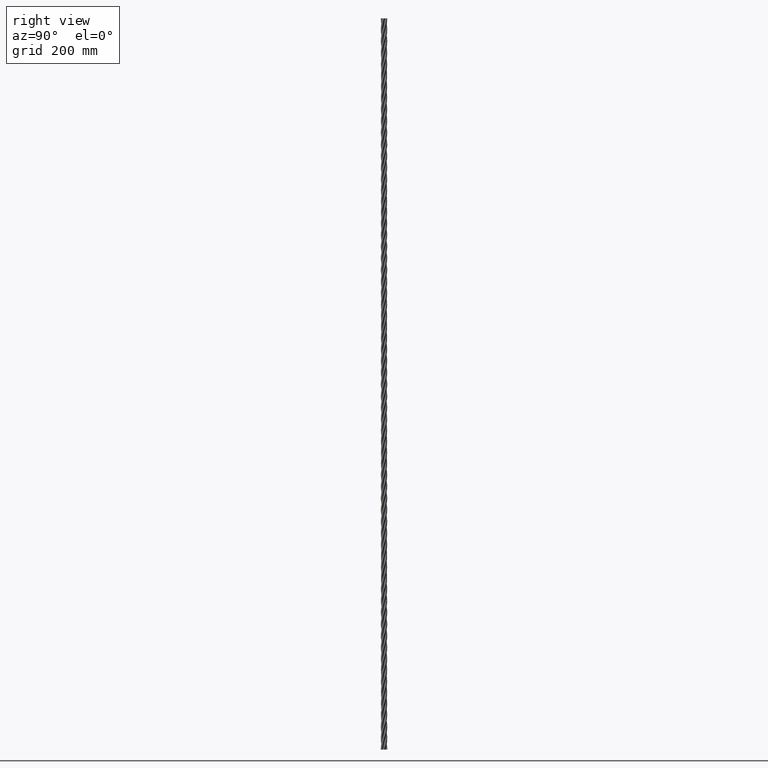
[diagram: clean part render]
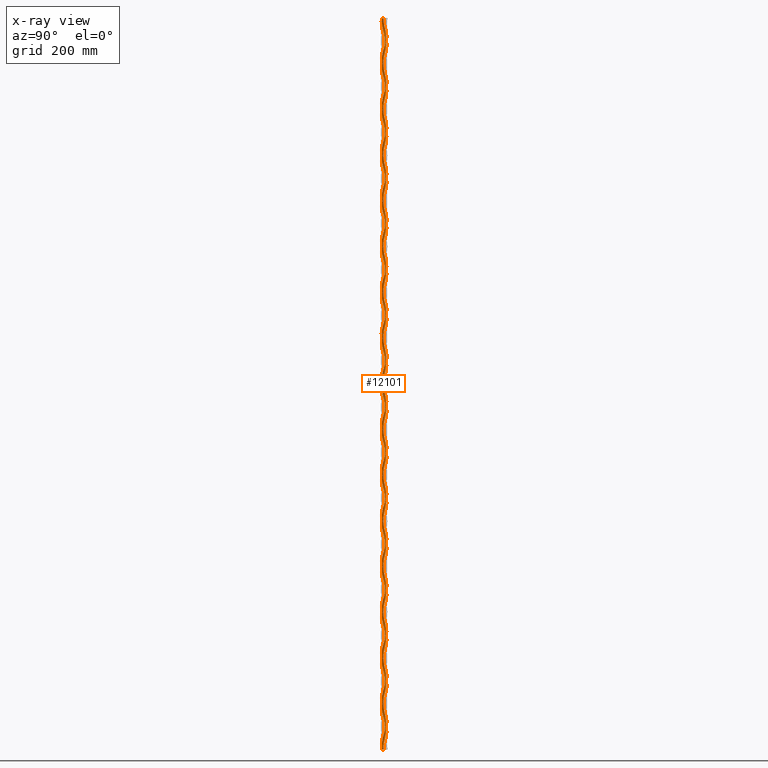
[diagram: x-ray — body ghosted, one internal face saturated and labeled with its STEP entity id]
A machine part, right view, then the same camera in x-ray: the body is ghosted and one INTERNAL B-rep face — a face not visible from any outside direction — is saturated and labeled: STEP entity #12101.
In plain terms, the highlighted face is a freeform B-spline surface patch.
Its self-contained STEP definition (entity closure, byte-faithful):
#4 = CARTESIAN_POINT ( 'NONE',  ( -10.68396539808967200, 6.270306255034134900, -1256.896551724137900 ) ) ;
#26 = CARTESIAN_POINT ( 'NONE',  ( 13.78632324108630200, 2.753231960091633700, -2467.239665108555100 ) ) ;
#31 = CARTESIAN_POINT ( 'NONE',  ( 0.8399118275822650100, -4.886555636634579300, -2001.724137927888000 ) ) ;
#50 = CARTESIAN_POINT ( 'NONE',  ( 12.38731303905346500, 0.1354027383847051200, -651.7241379191713100 ) ) ;
#75 = CARTESIAN_POINT ( 'NONE',  ( -10.38034677573888200, -9.472927676320654900, -1862.068965517304200 ) ) ;
#78 = CARTESIAN_POINT ( 'NONE',  ( -3.238967075141657000, 3.754060476707294500, -1396.551724137931200 ) ) ;
#81 = B_SPLINE_CURVE_WITH_KNOTS ( 'NONE', 3,
 ( #9139, #9156, #9197, #9097, #9094, #9063, #9048, #9037, #9021, #9010, #9002, #8999, #8985, #8971, #8968, #8957, #8953, #8930, #8920, #8917, #8908, #8905, #8892, #8881, #8877, #8868, #8847, #8844, #8835, #8831, #8817, #8802, #8798, #8785, #8782, #8765, #8755, #8729, #8715, #8702, #8679, #8676, #8663, #8643, #8630, #8627, #8619, #8605, #8584, #8582, #8571, #8558, #8549, #8546, #8535, #8519, #8505, #8501, #8489, #8475, #8470, #8459, #8447, #8435 ),
 .UNSPECIFIED., .F., .F.,
 ( 4, 1, 1, 1, 1, 1, 1, 1, 1, 1, 1, 1, 1, 1, 1, 1, 1, 1, 1, 1, 1, 1, 1, 1, 1, 1, 1, 1, 1, 1, 1, 1, 1, 1, 1, 1, 1, 1, 1, 1, 1, 1, 1, 1, 1, 1, 1, 1, 1, 1, 1, 1, 1, 1, 1, 1, 1, 1, 1, 1, 1, 4 ),
 ( 0.0000000000000000000, 0.008712557615085603200, 0.01742511523017125200, 0.02613767284525694800, 0.03768863433605058200, 0.05207799970255220400, 0.06930576894476177300, 0.08653353818697134800, 0.1037613074291808800, 0.1209890766713903600, 0.1382168459135998700, 0.1554446151558094600, 0.1726723843980190200, 0.1899001536402285800, 0.2071279228824380900, 0.2243556921246476500, 0.2415834613668571800, 0.2588112306090667400, 0.2760389998512762800, 0.2932667690934858700, 0.3104945383356954000, 0.3277223075779049900, 0.3449500768201145800, 0.3621778460623241200, 0.3794056153045335900, 0.3966333845467431300, 0.4138611537889526600, 0.4310889230311621400, 0.4483166922733716200, 0.4655444615155811000, 0.4827722307577906900, 0.5000000000000001100, 0.5172277692422097000, 0.5344555384844191800, 0.5516833077266287700, 0.5689110769688382500, 0.5861388462110476100, 0.6033666154532572000, 0.6205943846954666800, 0.6378221539376762700, 0.6550499231798857500, 0.6722776924220951200, 0.6895054616643047100, 0.7067332309065141900, 0.7239610001487237800, 0.7411887693909333700, 0.7584165386331429600, 0.7756443078753525500, 0.7928720771175620200, 0.8100998463597716100, 0.8273276156019809800, 0.8445553848441905700, 0.8617831540864000500, 0.8790109233286096400, 0.8962386925708191200, 0.9134664618130287100, 0.9306942310552383000, 0.9479220002974478900, 0.9623113656639493700, 0.9738623271547429700, 0.9825748847698285700, 1.000000000000000000 ),
 .UNSPECIFIED. ) ;
#92 = CARTESIAN_POINT ( 'NONE',  ( -8.288077817170631100, 3.468459770354806300, -72.39792966572048300 ) ) ;
#116 = CARTESIAN_POINT ( 'NONE',  ( 4.010670223131819000, 13.46857387806705700, -1256.896551724137900 ) ) ;
#120 = EDGE_CURVE ( 'NONE', #6864, #10692, #81, .T. ) ;
#121 = CARTESIAN_POINT ( 'NONE',  ( 4.710752539896845700, -1.546831690149686800, -791.3793103450570900 ) ) ;
#138 = CARTESIAN_POINT ( 'NONE',  ( -1.563060474366954300, -8.394834215106140400, -2557.746808158279700 ) ) ;
#165 = CARTESIAN_POINT ( 'NONE',  ( 3.507203749902906100, -13.60836070879695100, -651.7241379191713100 ) ) ;
#171 = CARTESIAN_POINT ( 'NONE',  ( -4.816176619355964300, -1.109373084543781000, -186.2006775543723300 ) ) ;
#189 = CARTESIAN_POINT ( 'NONE',  ( -2.608979572043753400, 8.811540120674495200, -1955.172413793958200 ) ) ;
#216 = CARTESIAN_POINT ( 'NONE',  ( 1.573833011885963800, 10.06987116082229700, -72.39792966572048300 ) ) ;
#220 = CARTESIAN_POINT ( 'NONE',  ( 5.011138398243011800, -3.949115703520899200, -2653.449779426162000 ) ) ;
#238 = CARTESIAN_POINT ( 'NONE',  ( 6.778346363051477800, -6.205161907909146500, -1350.000000000000200 ) ) ;
#264 = CARTESIAN_POINT ( 'NONE',  ( 2.608979659247371500, 8.811539888018318200, -2094.827586162481600 ) ) ;
#279 = CARTESIAN_POINT ( 'NONE',  ( -9.007169878001477100, 1.822334901749849600, -744.8275862060460200 ) ) ;
#306 = CARTESIAN_POINT ( 'NONE',  ( 2.307300632935208800, -8.895300866756356200, -1489.655172413793000 ) ) ;
#321 = CARTESIAN_POINT ( 'NONE',  ( 8.224484858621766000, 2.298981086134690000, -142.2531254628891900 ) ) ;
#349 = CARTESIAN_POINT ( 'NONE',  ( -6.563033777594979400, 6.432464640914272300, -884.4827586207068200 ) ) ;
#403 = CARTESIAN_POINT ( 'NONE',  ( 8.942095976281308400, -2.129229230221133800, -279.3098983236669100 ) ) ;
#427 = CARTESIAN_POINT ( 'NONE',  ( 4.963961030678928100, -7.036038969321072800, -2700.000000000000000 ) ) ;
#438 = CARTESIAN_POINT ( 'NONE',  ( -3.326671778804295400, -7.162158668403144200, -2692.274804044992400 ) ) ;
#482 = CARTESIAN_POINT ( 'NONE',  ( -5.921949632648734000, -10.88092066805892300, -2187.931033854381900 ) ) ;
#531 = CARTESIAN_POINT ( 'NONE',  ( -0.5354315260779890500, 12.37647648728769700, -1582.758620689656300 ) ) ;
#550 = CARTESIAN_POINT ( 'NONE',  ( 4.153416141140292300, -3.802075603746959400, 0.0003987658744335367400 ) ) ;
#575 = CARTESIAN_POINT ( 'NONE',  ( 6.839528536739782000, -10.32882890527498900, -977.5862068965541300 ) ) ;
#587 = CARTESIAN_POINT ( 'NONE',  ( 4.515802778071034100, 2.047054453062226600, -2327.586238637408800 ) ) ;
#610 = CARTESIAN_POINT ( 'NONE',  ( -11.18533972194749300, 5.324102520970840600, -372.4137610459102900 ) ) ;
#625 = CARTESIAN_POINT ( 'NONE',  ( -2.814094777522561800, -4.082247954218245500, -1722.413793103446800 ) ) ;
#651 = CARTESIAN_POINT ( 'NONE',  ( -4.976874516416558900, -5.731357245948379900, 0.0005981488127605285400 ) ) ;
#668 = CARTESIAN_POINT ( 'NONE',  ( 0.3066586257879850300, 4.948720871483639700, -1117.241379310345300 ) ) ;
#705 = CARTESIAN_POINT ( 'NONE',  ( 9.295334561997926000, 10.53964757104154700, -2281.034473922293700 ) ) ;
#718 = CARTESIAN_POINT ( 'NONE',  ( 2.288568578548599900, -4.398447652660268000, -512.0689661339615700 ) ) ;
#731 = CARTESIAN_POINT ( 'NONE',  ( -6.812175637669847500, 12.29152873416372800, -2281.034473922293700 ) ) ;
#742 = CARTESIAN_POINT ( 'NONE',  ( -2.530950515178751900, -13.82325024866903000, -1675.862068965517000 ) ) ;
#753 = CARTESIAN_POINT ( 'NONE',  ( 1.948878657068233300, -2.330638625610656200, -2.220446049250313100E-012 ) ) ;
#769 = CARTESIAN_POINT ( 'NONE',  ( 12.17405946905527800, -7.019988176024049200, -1675.862068965517000 ) ) ;
#778 = CARTESIAN_POINT ( 'NONE',  ( -4.957966872971957700, 13.14939247395832000, -1070.689655172414400 ) ) ;
#793 = CARTESIAN_POINT ( 'NONE',  ( -2.625150466349732700, 1.779658777048220800, -2420.690095698024400 ) ) ;
#809 = CARTESIAN_POINT ( 'NONE',  ( -14.05061220063962700, -0.2612560715388244100, -1070.689655172414400 ) ) ;
#824 = CARTESIAN_POINT ( 'NONE',  ( 11.02750857806483600, -8.711057253162088900, -465.5172390776845600 ) ) ;
#849 = CARTESIAN_POINT ( 'NONE',  ( 3.166025430327299900, -0.1716569110097168300, -1815.517241379293900 ) ) ;
#865 = CARTESIAN_POINT ( 'NONE',  ( 11.90468732607688400, 7.467722783787967200, -465.5172390776845600 ) ) ;
#879 = CARTESIAN_POINT ( 'NONE',  ( -4.963901561982697600, -7.036075089910720100, 0.0001993829361065454000 ) ) ;
#892 = CARTESIAN_POINT ( 'NONE',  ( -2.801329992455454700, -1.485171166482879900, -1210.344827586207700 ) ) ;
#905 = CARTESIAN_POINT ( 'NONE',  ( 4.964015002370826000, -7.035995057143929400, 0.0001993829361065454000 ) ) ;
#932 = CARTESIAN_POINT ( 'NONE',  ( 1.634653903502771000, 2.716816024306628400, -605.1724138373828100 ) ) ;
#946 = CARTESIAN_POINT ( 'NONE',  ( 3.445288619680474600, -11.89925995344619700, -2374.137809132387200 ) ) ;
#979 = CARTESIAN_POINT ( 'NONE',  ( -2.526357989137785000, -0.1636739821891457500, -38.79091710099528000 ) ) ;
#995 = CARTESIAN_POINT ( 'NONE',  ( -9.086249728398671600, 8.420446724079301500, -1768.965517241383400 ) ) ;
#1033 = CARTESIAN_POINT ( 'NONE',  ( -0.2394214997906865500, -4.936156443524878600, -2513.799261010849500 ) ) ;
#1045 = CARTESIAN_POINT ( 'NONE',  ( 12.12681207196068400, -2.530669107340541800, -1163.793103448276700 ) ) ;
#1068 = CARTESIAN_POINT ( 'NONE',  ( -12.17348192055574400, -7.020855931894511000, -2374.137807960331900 ) ) ;
#1073 = EDGE_CURVE ( 'NONE', #1411, #10692, #4843, .T. ) ;
#1074 = CARTESIAN_POINT ( 'NONE',  ( -2.356229791255966900, 4.362574806290145300, -1908.620689654947700 ) ) ;
#1085 = CARTESIAN_POINT ( 'NONE',  ( -11.69564157812121700, -4.083601655619219200, -558.6206894899246400 ) ) ;
#1108 = CARTESIAN_POINT ( 'NONE',  ( 6.812248237646684000, 12.29151056204410600, -1768.965517241384500 ) ) ;
#1111 = CARTESIAN_POINT ( 'NONE',  ( 4.268094674550305900, -2.523340172410876800, -1303.448275862070000 ) ) ;
#1129 = CARTESIAN_POINT ( 'NONE',  ( 1.595538337788473800, -9.100975251106778100, -15.51833455295418500 ) ) ;
#1156 = CARTESIAN_POINT ( 'NONE',  ( 0.4998118924970339500, -14.04414988597696700, -1163.793103448276500 ) ) ;
#1161 = CARTESIAN_POINT ( 'NONE',  ( -4.958065318375942900, -0.03829053448014537600, -698.2758620721462000 ) ) ;
#1162 = EDGE_LOOP ( 'NONE', ( #6309, #11001, #3154, #11328 ) ) ;
#1187 = CARTESIAN_POINT ( 'NONE',  ( -0.6452635968794105900, 9.170595269413826900, -2467.239707809568200 ) ) ;
#1211 = CARTESIAN_POINT ( 'NONE',  ( -7.668781681836718700, 11.77615031250723400, -558.6206894899245300 ) ) ;
#1215 = CARTESIAN_POINT ( 'NONE',  ( 3.939223524250892200, 0.7915240135650503100, -103.3485651343444500 ) ) ;
#1232 = CARTESIAN_POINT ( 'NONE',  ( 5.285946004642688000, -7.517232772496029700, -1862.068965517303200 ) ) ;
#1254 = CARTESIAN_POINT ( 'NONE',  ( -9.592517171288262600, -4.224708174873019800, -15.51833455295418000 ) ) ;
#1258 = CARTESIAN_POINT ( 'NONE',  ( 1.138052653609741900, 7.365715687897745700, -2596.651620557708200 ) ) ;
#1272 = CARTESIAN_POINT ( 'NONE',  ( -8.404839118257973100, 3.716004994218921300, -1256.896551724137700 ) ) ;
#1297 = CARTESIAN_POINT ( 'NONE',  ( 0.3411304897637469900, -9.183335125319807400, -2001.724137927844600 ) ) ;
#1311 = CARTESIAN_POINT ( 'NONE',  ( 9.117547445574210500, 1.149061742091444200, -651.7241379191714300 ) ) ;
#1344 = CARTESIAN_POINT ( 'NONE',  ( -5.026803939448436500, 7.692935452426854500, -1396.551724137931200 ) ) ;
#1384 = CARTESIAN_POINT ( 'NONE',  ( 8.273375573075805200, -4.000158787376496300, -791.3793103450566400 ) ) ;
#1411 = VERTEX_POINT ( 'NONE', #6360 ) ;
#1424 = CARTESIAN_POINT ( 'NONE',  ( -9.120318716150468000, -0.8534489837823647800, -186.2006775543722500 ) ) ;
#1465 = CARTESIAN_POINT ( 'NONE',  ( 7.318152709580673800, -4.516627296231336100, -2653.453297771915500 ) ) ;
#1520 = CARTESIAN_POINT ( 'NONE',  ( 2.137663323089616300, 12.20222299508909600, -2094.827586161780800 ) ) ;
#1553 = CARTESIAN_POINT ( 'NONE',  ( 4.459231263721800800, -11.55764308568768000, -1489.655172413793700 ) ) ;
#1567 = CARTESIAN_POINT ( 'NONE',  ( 1.948878657068233300, -2.330638625610656200, -2700.000000000000000 ) ) ;
#1589 = CARTESIAN_POINT ( 'NONE',  ( -9.779511781328762900, 7.604275539541393200, -884.4827586207068200 ) ) ;
#1606 = CARTESIAN_POINT ( 'NONE',  ( -3.625872137051175900, -3.381862340132839600, -2234.482760899580600 ) ) ;
#1632 = CARTESIAN_POINT ( 'NONE',  ( 12.30321969944459300, -1.475073676100270300, -279.3098983236670300 ) ) ;
#1651 = CARTESIAN_POINT ( 'NONE',  ( 1.363317821754968000, 4.767099987782307500, -1629.310344827586500 ) ) ;
#1675 = CARTESIAN_POINT ( 'NONE',  ( -2.944028174848161600, -8.459591644216022400, -2692.292408324976300 ) ) ;
#1689 = CARTESIAN_POINT ( 'NONE',  ( 1.289528127282517000, -4.787587595602595100, -1024.137931034483500 ) ) ;
#1701 = CARTESIAN_POINT ( 'NONE',  ( 6.982461754790909600, -5.610456356132659500, -2692.292408324976300 ) ) ;
#1712 = CARTESIAN_POINT ( 'NONE',  ( -5.443365512578606200, -12.95599526626401900, -2187.931033848339200 ) ) ;
#1726 = CARTESIAN_POINT ( 'NONE',  ( -3.573213365593887100, 3.437434972394463300, -418.9655258311725600 ) ) ;
#1741 = CARTESIAN_POINT ( 'NONE',  ( 10.38035198788785100, -9.472926372063627200, -2187.931033848339200 ) ) ;
#1750 = CARTESIAN_POINT ( 'NONE',  ( -2.015321674039031400, 13.90778330640157500, -1582.758620689655300 ) ) ;
#1765 = CARTESIAN_POINT ( 'NONE',  ( 1.948914075247806500, -2.330604623393345100, 0.0003987658744335370100 ) ) ;
#1786 = CARTESIAN_POINT ( 'NONE',  ( -13.77827902816178900, 2.765318240237633100, -1582.758620689655300 ) ) ;
#1804 = CARTESIAN_POINT ( 'NONE',  ( 8.897054167074109900, -10.87797706816802500, -977.5862068965536800 ) ) ;
#1819 = CARTESIAN_POINT ( 'NONE',  ( 3.055045678283001600, -0.8482228103508961900, -2327.586238524868300 ) ) ;
#1832 = CARTESIAN_POINT ( 'NONE',  ( 13.23168774559047400, 4.733962119686964300, -977.5862068965536800 ) ) ;
#1843 = CARTESIAN_POINT ( 'NONE',  ( -13.23142207522416300, 4.733893944992848500, -372.4137610459101800 ) ) ;
#1861 = CARTESIAN_POINT ( 'NONE',  ( -3.055104353404588700, -0.8482455482814200700, -1722.413793103447000 ) ) ;
#1875 = CARTESIAN_POINT ( 'NONE',  ( -8.896900848154020400, -10.87774964380434800, -372.4137610459101800 ) ) ;
#1886 = CARTESIAN_POINT ( 'NONE',  ( -4.963782624590237400, -7.036147331090015600, 0.0005981488127605283200 ) ) ;
#1901 = CARTESIAN_POINT ( 'NONE',  ( 2.180471824908103400, 2.301896118673641700, -1117.241379310345300 ) ) ;
#1918 = CARTESIAN_POINT ( 'NONE',  ( 4.964122945754621900, -7.035907232789641700, 0.0005981488127605283200 ) ) ;
#1951 = CARTESIAN_POINT ( 'NONE',  ( -0.6816026206326415400, -3.096547290840755200, -512.0689661339614500 ) ) ;
#1967 = CARTESIAN_POINT ( 'NONE',  ( -7.063609078729454500, 10.17687881643100300, -2281.034474006443800 ) ) ;
#1997 = CARTESIAN_POINT ( 'NONE',  ( 4.336808689942017700E-016, -1.942797595157888400, -2.220446049250313100E-012 ) ) ;
#2008 = CARTESIAN_POINT ( 'NONE',  ( 11.29927489267424800, -5.078409599395930000, -1675.862068965517000 ) ) ;
#2031 = CARTESIAN_POINT ( 'NONE',  ( -4.963961030678928100, -7.036038969321071900, -2700.000000000000000 ) ) ;
#2036 = CARTESIAN_POINT ( 'NONE',  ( -1.363980623433845000, 4.768299743667205900, -2420.690097265516700 ) ) ;
#2049 = CARTESIAN_POINT ( 'NONE',  ( -12.30005843457338000, -1.473913045463537600, -1070.689655172414600 ) ) ;
#2071 = CARTESIAN_POINT ( 'NONE',  ( 9.295334561997926000, 10.53964757104154700, -2281.034473922293700 ) ) ;
#2073 = CARTESIAN_POINT ( 'NONE',  ( -1.948878657069416300, -2.330638625609667600, -2700.000000000014100 ) ) ;
#2076 = CARTESIAN_POINT ( 'NONE',  ( 3.625865445241520200, -3.381860072520032300, -1815.517241379294500 ) ) ;
#2090 = CARTESIAN_POINT ( 'NONE',  ( 9.779519989131435100, 7.604290835604754100, -465.5172390776846200 ) ) ;
#2121 = CARTESIAN_POINT ( 'NONE',  ( -2.530950515178751900, -13.82325024866903000, -1675.862068965517000 ) ) ;
#2128 = CARTESIAN_POINT ( 'NONE',  ( -4.850379831350413600, 1.028442156009019100, -1210.344827586207900 ) ) ;
#2143 = CARTESIAN_POINT ( 'NONE',  ( 4.977064834937506200, -5.731203105959518300, 0.0001993829361065454800 ) ) ;
#2164 = CARTESIAN_POINT ( 'NONE',  ( -4.957966872971957700, 13.14939247395832000, -1070.689655172414400 ) ) ;
#2169 = CARTESIAN_POINT ( 'NONE',  ( 4.686299959734629500, 1.619404032894892000, -605.1724138373829200 ) ) ;
#2187 = CARTESIAN_POINT ( 'NONE',  ( 3.546990874339466700, -8.477503881687301400, -2374.137811026125300 ) ) ;
#2205 = CARTESIAN_POINT ( 'NONE',  ( 11.02750857806483600, -8.711057253162088900, -465.5172390776845600 ) ) ;
#2209 = CARTESIAN_POINT ( 'NONE',  ( -3.194881575764941100, 2.337917378304030800, -38.79091710099528700 ) ) ;
#2229 = CARTESIAN_POINT ( 'NONE',  ( -7.409507420915710800, 5.435918827619328700, -1768.965517241384100 ) ) ;
#2259 = CARTESIAN_POINT ( 'NONE',  ( -1.653848526486153100, -9.008987518139374400, -2513.799341574099800 ) ) ;
#2280 = CARTESIAN_POINT ( 'NONE',  ( 9.151398524345530900, -0.8378059258961586500, -1163.793103448276500 ) ) ;
#2312 = CARTESIAN_POINT ( 'NONE',  ( -3.255526335594356000, 8.593693151098403100, -1908.620689654943100 ) ) ;
#2326 = CARTESIAN_POINT ( 'NONE',  ( -8.273375232945937800, -4.000157928690552600, -558.6206894899245300 ) ) ;
#2352 = CARTESIAN_POINT ( 'NONE',  ( 7.220032755329703500, -5.685168487637418400, -1303.448275862069100 ) ) ;
#2395 = CARTESIAN_POINT ( 'NONE',  ( -9.117547436959554800, 1.149061688395655500, -698.2758620721459700 ) ) ;
#2439 = CARTESIAN_POINT ( 'NONE',  ( 7.431154015180492700, 0.4852304061961901200, -103.3485651343444000 ) ) ;
#2478 = CARTESIAN_POINT ( 'NONE',  ( 0.3901076326299418600, 10.03973156725357500, -2596.652576158492100 ) ) ;
#2516 = CARTESIAN_POINT ( 'NONE',  ( 1.870425304291543700, -12.24603474238484700, -2001.724137927797500 ) ) ;
#2557 = CARTESIAN_POINT ( 'NONE',  ( -7.916177770129179300, 9.528797755814320400, -1396.551724137931400 ) ) ;
#2573 = CARTESIAN_POINT ( 'NONE',  ( 3.440764290079152400, -0.02797146975143838300, -2676.732373217468200 ) ) ;
#2605 = CARTESIAN_POINT ( 'NONE',  ( 11.69564216580741500, -4.083602753236570800, -791.3793103450570900 ) ) ;
#2621 = CARTESIAN_POINT ( 'NONE',  ( 2.356229311143225800, 4.362574644092713800, -2141.379310508445100 ) ) ;
#2640 = CARTESIAN_POINT ( 'NONE',  ( -12.08278133236491300, -2.546834606735738600, -186.2006775543723600 ) ) ;
#2653 = CARTESIAN_POINT ( 'NONE',  ( 0.2301898632942618000, -4.952866887315247300, -1536.206896551724600 ) ) ;
#2675 = CARTESIAN_POINT ( 'NONE',  ( 8.773899872707367800, -4.263005609410494200, -2653.455475305865100 ) ) ;
#2691 = CARTESIAN_POINT ( 'NONE',  ( -2.750709464078030700, 4.125224263106037600, -931.0344827586169500 ) ) ;
#2703 = CARTESIAN_POINT ( 'NONE',  ( 6.958460212300333400, 6.836253892007904100, -2653.455475305865100 ) ) ;
#2718 = CARTESIAN_POINT ( 'NONE',  ( 1.021557940251470700, 14.01586132767487000, -2094.827586161347000 ) ) ;
#2739 = CARTESIAN_POINT ( 'NONE',  ( 4.483563753844856900, -2.116904131822627800, -325.8621886058837700 ) ) ;
#2756 = CARTESIAN_POINT ( 'NONE',  ( -12.86168846754727100, 5.662589438204428800, -2094.827586161347000 ) ) ;
#2769 = CARTESIAN_POINT ( 'NONE',  ( 6.350602465889955400, -12.53625966019767500, -1489.655172413793300 ) ) ;
#2783 = CARTESIAN_POINT ( 'NONE',  ( 4.336808689942017700E-016, -1.942797595157888400, -2700.000000000000000 ) ) ;
#2794 = CARTESIAN_POINT ( 'NONE',  ( 13.94000015989960900, 1.778862976641538000, -1489.655172413793300 ) ) ;
#2805 = CARTESIAN_POINT ( 'NONE',  ( -11.90467631840903300, 7.467706455487688200, -884.4827586207067000 ) ) ;
#2819 = CARTESIAN_POINT ( 'NONE',  ( -3.166029642981662600, -0.1716552784878379900, -2234.482760891500200 ) ) ;
#2837 = CARTESIAN_POINT ( 'NONE',  ( -11.02748950386851600, -8.711052358555258800, -884.4827586207067000 ) ) ;
#2848 = CARTESIAN_POINT ( 'NONE',  ( 14.05431251157473600, -0.2622056226429013700, -279.3098983236669100 ) ) ;
#2864 = CARTESIAN_POINT ( 'NONE',  ( 2.624333227303405500, 1.779342078537593700, -1629.310344827586300 ) ) ;
#2883 = CARTESIAN_POINT ( 'NONE',  ( 4.960102330180064600, 13.15256008675474300, -279.3098983236669100 ) ) ;
#2914 = CARTESIAN_POINT ( 'NONE',  ( -1.331332086641748200, -2.877627146705765200, -1024.137931034483500 ) ) ;
#2926 = CARTESIAN_POINT ( 'NONE',  ( 6.625931655382579800, -4.298675744499860200, -2692.274804044991000 ) ) ;
#2952 = CARTESIAN_POINT ( 'NONE',  ( -0.3428258224506762200, 3.152082972288648300, -418.9655258311723900 ) ) ;
#2965 = CARTESIAN_POINT ( 'NONE',  ( 9.943400632014396800, -7.388687697923959500, -2187.931033854381400 ) ) ;
#2991 = CARTESIAN_POINT ( 'NONE',  ( 3.132326500921946200E-005, -1.942795443737534500, 0.0003987658744335368500 ) ) ;
#3006 = CARTESIAN_POINT ( 'NONE',  ( -12.32933763985543900, 1.204695198773190400, -1582.758620689655600 ) ) ;
#3037 = CARTESIAN_POINT ( 'NONE',  ( 2.814047190505975800, -4.082161815622707300, -2327.586238637408800 ) ) ;
#3054 = CARTESIAN_POINT ( 'NONE',  ( 11.18556669054908800, 5.324185850494005800, -977.5862068965537900 ) ) ;
#3081 = CARTESIAN_POINT ( 'NONE',  ( -5.443365512578606200, -12.95599526626401900, -2187.931033848339200 ) ) ;
#3083 = CARTESIAN_POINT ( 'NONE',  ( 1.948878657067051100, -2.330638625611644700, -2700.000000000013600 ) ) ;
#3086 = CARTESIAN_POINT ( 'NONE',  ( -4.515895983287853400, 2.047086037450171600, -1722.413793103447000 ) ) ;
#3100 = CARTESIAN_POINT ( 'NONE',  ( -6.839414215185059700, -10.32861585800870200, -372.4137610459101800 ) ) ;
#3124 = CARTESIAN_POINT ( 'NONE',  ( -2.015321674039031400, 13.90778330640157500, -1582.758620689655300 ) ) ;
#3129 = CARTESIAN_POINT ( 'NONE',  ( 4.924860982690413300, 0.5741272313708866100, -1117.241379310345300 ) ) ;
#3145 = CARTESIAN_POINT ( 'NONE',  ( 4.977151726997259800, -5.731116515940827000, 0.0005981488127605285400 ) ) ;
#3154 = ORIENTED_EDGE ( 'NONE', *, *, #1073, .T. ) ;
#3167 = CARTESIAN_POINT ( 'NONE',  ( 8.897054167074109900, -10.87797706816802500, -977.5862068965536800 ) ) ;
#3173 = CARTESIAN_POINT ( 'NONE',  ( -3.923910725278792800, -3.030975505007361900, -512.0689661339614500 ) ) ;
#3189 = CARTESIAN_POINT ( 'NONE',  ( -6.067671582092815500, 6.901676842807166400, -2281.034474142407400 ) ) ;
#3222 = CARTESIAN_POINT ( 'NONE',  ( -13.23142207522416300, 4.733893944992848500, -372.4137610459101800 ) ) ;
#3227 = CARTESIAN_POINT ( 'NONE',  ( -1.948878657068233000, -2.330638625610656600, -2.220446049250313100E-012 ) ) ;
#3246 = CARTESIAN_POINT ( 'NONE',  ( 8.757340403667839700, -2.785498658251857500, -1675.862068965517200 ) ) ;
#3270 = CARTESIAN_POINT ( 'NONE',  ( -1.332947100729610500, 9.094987118003349000, -2420.690103049697900 ) ) ;
#3285 = CARTESIAN_POINT ( 'NONE',  ( -8.939864546449433300, -2.128106109196926400, -1070.689655172414400 ) ) ;
#3308 = CARTESIAN_POINT ( 'NONE',  ( 5.829089229327620600, -7.104346027540232800, -1815.517241379294100 ) ) ;
#3326 = CARTESIAN_POINT ( 'NONE',  ( 6.563038530796649000, 6.432476608825193200, -465.5172390776845600 ) ) ;
#3356 = CARTESIAN_POINT ( 'NONE',  ( -8.657369933815386900, 3.082200439609521900, -1210.344827586207700 ) ) ;
#3410 = CARTESIAN_POINT ( 'NONE',  ( 9.007169658476414000, 1.822335008697464100, -605.1724138373826900 ) ) ;
#3447 = CARTESIAN_POINT ( 'NONE',  ( -5.294108245002703100, 5.080591165063522900, -38.79091710099526600 ) ) ;
#3487 = CARTESIAN_POINT ( 'NONE',  ( -0.8281572664471702500, -12.31960644309854800, -2513.799440012248400 ) ) ;
#3538 = CARTESIAN_POINT ( 'NONE',  ( -5.682692083894670200, 11.00776397801685600, -1908.620689654940000 ) ) ;
#3577 = CARTESIAN_POINT ( 'NONE',  ( 10.54435067129748300, -6.502347736026281100, -1303.448275862070000 ) ) ;
#3590 = CARTESIAN_POINT ( 'NONE',  ( -0.8397644013416552000, 3.495250990621635800, -2627.602920716954500 ) ) ;
#3611 = CARTESIAN_POINT ( 'NONE',  ( -12.38731301925122500, 0.1354026678000455100, -698.2758620721463100 ) ) ;
#3627 = CARTESIAN_POINT ( 'NONE',  ( -0.8399118573586658000, -4.886555639781631700, -2048.275862080713100 ) ) ;
#3653 = CARTESIAN_POINT ( 'NONE',  ( 9.877290392222949600, 1.793697146898282100, -103.3485651343444500 ) ) ;
#3667 = CARTESIAN_POINT ( 'NONE',  ( -1.799598129604512900, 4.620100036638965500, -1443.103448275862100 ) ) ;
#3701 = CARTESIAN_POINT ( 'NONE',  ( -0.7044961938245174500, 11.37602314042358700, -2596.653167587901900 ) ) ;
#3715 = CARTESIAN_POINT ( 'NONE',  ( 3.923908966092658300, -3.030976113758990600, -837.9310344826985800 ) ) ;
#3728 = CARTESIAN_POINT ( 'NONE',  ( -10.95353960509508800, 3.151220001551719600, -2596.653167587901900 ) ) ;
#3738 = CARTESIAN_POINT ( 'NONE',  ( 3.507203666924871000, -13.60836070662375300, -2001.724137927764600 ) ) ;
#3751 = CARTESIAN_POINT ( 'NONE',  ( -4.927321686247857700, 0.5697399466374228900, -232.7602870649761800 ) ) ;
#3767 = CARTESIAN_POINT ( 'NONE',  ( 13.99649368679260400, -1.259413815410686900, -2001.724137927764600 ) ) ;
#3780 = CARTESIAN_POINT ( 'NONE',  ( -10.02101545740514300, 9.852269137113333700, -1396.551724137931200 ) ) ;
#3797 = CARTESIAN_POINT ( 'NONE',  ( 1.676333078895337000, -1.425124397736887900, -2676.735299829640100 ) ) ;
#3812 = CARTESIAN_POINT ( 'NONE',  ( -12.64229168747374900, -6.136808522065915200, -1396.551724137931200 ) ) ;
#3826 = CARTESIAN_POINT ( 'NONE',  ( 13.66595436085734000, -3.275614339288668300, -791.3793103450568700 ) ) ;
#3849 = CARTESIAN_POINT ( 'NONE',  ( 2.945483422269508500, 1.173588097614799900, -2141.379310507865300 ) ) ;
#3863 = CARTESIAN_POINT ( 'NONE',  ( 7.668783050216076100, 11.77615066231355600, -791.3793103450568700 ) ) ;
#3875 = CARTESIAN_POINT ( 'NONE',  ( -13.34698798966893600, -4.252027371095022300, -186.2006775543723100 ) ) ;
#3889 = CARTESIAN_POINT ( 'NONE',  ( -1.918811056781873000, -2.524152778409854700, -1536.206896551724200 ) ) ;
#3903 = CARTESIAN_POINT ( 'NONE',  ( -0.4700688104990126700, -14.00003073119141900, -186.2006775543723100 ) ) ;
#3927 = CARTESIAN_POINT ( 'NONE',  ( 0.3428103227078505000, 3.152088863444686400, -931.0344827586168300 ) ) ;
#3942 = CARTESIAN_POINT ( 'NONE',  ( 5.497936136792513500, 6.612682232743813900, -2653.453297771914100 ) ) ;
#3973 = CARTESIAN_POINT ( 'NONE',  ( 1.331116202965197900, -2.877709199882537900, -325.8621886058836600 ) ) ;
#3987 = CARTESIAN_POINT ( 'NONE',  ( -11.78211040036332800, 3.826973349664885700, -2094.827586161779400 ) ) ;
#4020 = CARTESIAN_POINT ( 'NONE',  ( -4.977021388910522100, -5.731246400966358400, -2700.000000000014600 ) ) ;
#4022 = CARTESIAN_POINT ( 'NONE',  ( -1.948878657068233000, -2.330638625610656600, -2700.000000000000500 ) ) ;
#4034 = CARTESIAN_POINT ( 'NONE',  ( 12.06859693330806800, 2.795143148542697200, -1489.655172413793300 ) ) ;
#4057 = CARTESIAN_POINT ( 'NONE',  ( 8.773899872707367800, -4.263005609410494200, -2653.455475305865100 ) ) ;
#4062 = CARTESIAN_POINT ( 'NONE',  ( -3.970257274702177200, 2.970016635432208400, -2234.482760899581100 ) ) ;
#4074 = CARTESIAN_POINT ( 'NONE',  ( -8.900017057044268000, -8.617050165035399400, -884.4827586207067000 ) ) ;
#4098 = CARTESIAN_POINT ( 'NONE',  ( 1.021557940251470700, 14.01586132767487000, -2094.827586161347000 ) ) ;
#4100 = CARTESIAN_POINT ( 'NONE',  ( 4.977021388904741000, -5.731246400971375700, -2700.000000000013600 ) ) ;
#4102 = CARTESIAN_POINT ( 'NONE',  ( 4.933140853375024700, -0.4979950776776156400, -1629.310344827586700 ) ) ;
#4117 = CARTESIAN_POINT ( 'NONE',  ( 3.185082327235566200, 11.97498675955248800, -279.3098983236669100 ) ) ;
#4142 = CARTESIAN_POINT ( 'NONE',  ( 6.350602465889955400, -12.53625966019767500, -1489.655172413793300 ) ) ;
#4147 = CARTESIAN_POINT ( 'NONE',  ( -4.483740424410595600, -2.116589138951365400, -1024.137931034483500 ) ) ;
#4170 = CARTESIAN_POINT ( 'NONE',  ( 5.251232392512212000, -2.601616701055351000, -2692.246359967845400 ) ) ;
#4197 = CARTESIAN_POINT ( 'NONE',  ( -11.90467631840903300, 7.467706455487688200, -884.4827586207067000 ) ) ;
#4202 = CARTESIAN_POINT ( 'NONE',  ( 2.750684960523105200, 4.125232744155332500, -418.9655258311725600 ) ) ;
#4219 = CARTESIAN_POINT ( 'NONE',  ( 7.953801924183719200, -4.602943010888947300, -2187.931033864141700 ) ) ;
#4240 = CARTESIAN_POINT ( 'NONE',  ( 14.05431251157473600, -0.2622056226429013700, -279.3098983236669100 ) ) ;
#4246 = CARTESIAN_POINT ( 'NONE',  ( -1.948838922579826800, -2.330667466010401900, 0.0003987658744335369000 ) ) ;
#4260 = CARTESIAN_POINT ( 'NONE',  ( -9.188335388436065900, -0.1565455539963279100, -1582.758620689655100 ) ) ;
#4287 = CARTESIAN_POINT ( 'NONE',  ( 4.165517689466423900, -8.191162242087431300, -2327.586239052695000 ) ) ;
#4303 = CARTESIAN_POINT ( 'NONE',  ( 7.792383450426777700, 4.871218931877066900, -977.5862068965536800 ) ) ;
#4340 = CARTESIAN_POINT ( 'NONE',  ( -7.792383450426648000, 4.871218931877161900, -1722.413793103446600 ) ) ;
#4358 = CARTESIAN_POINT ( 'NONE',  ( -4.165517764761428800, -8.191165550871103200, -372.4137610459101800 ) ) ;
#4385 = CARTESIAN_POINT ( 'NONE',  ( 9.188335388436026800, -0.1565455539964789300, -1117.241379310345100 ) ) ;
#4425 = CARTESIAN_POINT ( 'NONE',  ( -7.953801860893810800, -4.602943017930437400, -512.0689661339613400 ) ) ;
#4467 = CARTESIAN_POINT ( 'NONE',  ( -4.153359439387434000, -3.802146777807862100, -2.220446049250313100E-012 ) ) ;
#4519 = CARTESIAN_POINT ( 'NONE',  ( -3.185092363472445500, 11.97504985941335300, -2420.690110117238900 ) ) ;
#4554 = CARTESIAN_POINT ( 'NONE',  ( 8.900017057044511400, -8.617050165037900600, -1815.517241379293600 ) ) ;
#4590 = CARTESIAN_POINT ( 'NONE',  ( -12.06859693330799700, 2.795143148543067600, -1210.344827586207900 ) ) ;
#4606 = CARTESIAN_POINT ( 'NONE',  ( -1.436930569646100100, -4.377422315118467500, -2557.747087725556400 ) ) ;
#4635 = CARTESIAN_POINT ( 'NONE',  ( 11.78211040667918200, 3.826973349533625300, -605.1724138373830300 ) ) ;
#4652 = CARTESIAN_POINT ( 'NONE',  ( -0.7643395891704292100, 4.898945066503327600, -1955.172413793946600 ) ) ;
#4674 = CARTESIAN_POINT ( 'NONE',  ( -7.872044458509334300, 5.989137445723995000, -38.79091710099530100 ) ) ;
#4688 = CARTESIAN_POINT ( 'NONE',  ( 3.180599885454517200, -3.803638014490083700, -1350.000000000000000 ) ) ;
#4712 = CARTESIAN_POINT ( 'NONE',  ( 0.4697904811548675500, -13.99904327440306200, -2513.799500936450400 ) ) ;
#4727 = CARTESIAN_POINT ( 'NONE',  ( -4.686300084787177400, 1.619403991419433600, -744.8275862060453400 ) ) ;
#4736 = CARTESIAN_POINT ( 'NONE',  ( 13.34596437501282500, -4.251958442374743200, -2513.799500936450400 ) ) ;
#4747 = CARTESIAN_POINT ( 'NONE',  ( -7.668783050205357600, 11.77615066227760300, -1908.620689654937700 ) ) ;
#4765 = CARTESIAN_POINT ( 'NONE',  ( 4.562810594142240100, 0.6405919645556804600, -142.2531254628892400 ) ) ;
#4781 = CARTESIAN_POINT ( 'NONE',  ( -13.66595436081987800, -3.275614339290630300, -1908.620689654937700 ) ) ;
#4798 = CARTESIAN_POINT ( 'NONE',  ( 12.64229168747358800, -6.136808522066079500, -1303.448275862069500 ) ) ;
#4811 = CARTESIAN_POINT ( 'NONE',  ( 1.021824848654852700, 2.059151663150885700, -2627.603222921411500 ) ) ;
#4826 = CARTESIAN_POINT ( 'NONE',  ( 10.02101545740524300, 9.852269137113124100, -1303.448275862069500 ) ) ;
#4835 = CARTESIAN_POINT ( 'NONE',  ( -13.99649368626933000, -1.259413815374762900, -698.2758620721460800 ) ) ;
#4843 = B_SPLINE_CURVE_WITH_KNOTS ( 'NONE', 3,
 ( #9442, #9523, #9356, #9341, #9315, #9297, #9260, #9246, #9218 ),
 .UNSPECIFIED., .F., .F.,
 ( 4, 1, 1, 1, 1, 1, 4 ),
 ( 0.0000000000000000000, 0.003878840375062206700, 0.005818260562593310100, 0.007757680750124413400, 0.009697100937655515900, 0.01163652112518662000, 0.01551536150024882700 ),
 .UNSPECIFIED. ) ;
#4851 = CARTESIAN_POINT ( 'NONE',  ( -2.416568576227185300, -2.052651823174271900, -2048.275862080671200 ) ) ;
#4863 = CARTESIAN_POINT ( 'NONE',  ( -3.507203666783233600, -13.60836070611873100, -698.2758620721460800 ) ) ;
#4874 = CARTESIAN_POINT ( 'NONE',  ( 10.94360273625521700, 3.150550867266853800, -103.3485651343444300 ) ) ;
#4889 = CARTESIAN_POINT ( 'NONE',  ( 1.012401538416732000, 3.004700691482277400, -1443.103448275862100 ) ) ;
#4906 = CARTESIAN_POINT ( 'NONE',  ( 0.7017942764937467000, 11.36643727865900800, -103.3485651343444300 ) ) ;
#4942 = CARTESIAN_POINT ( 'NONE',  ( 0.6816015079110672200, -3.096546867833037500, -837.9310344826986900 ) ) ;
#4955 = CARTESIAN_POINT ( 'NONE',  ( -9.885901492505311700, 1.793518858535665000, -2596.652576158491200 ) ) ;
#4983 = CARTESIAN_POINT ( 'NONE',  ( -2.183478696638239600, 2.300753265354051400, -232.7602870649761800 ) ) ;
#4997 = CARTESIAN_POINT ( 'NONE',  ( 12.38731301970474900, 0.1354026678088284800, -2001.724137927796600 ) ) ;
#5023 = CARTESIAN_POINT ( 'NONE',  ( 0.5815941321374129600, -3.391272800634277400, -2676.732373217468600 ) ) ;
#5035 = CARTESIAN_POINT ( 'NONE',  ( -10.54435067129764300, -6.502347736026151500, -1396.551724137931400 ) ) ;
#5057 = CARTESIAN_POINT ( 'NONE',  ( -0.7044961938245174500, 11.37602314042358700, -2596.653167587901900 ) ) ;
#5061 = CARTESIAN_POINT ( 'NONE',  ( 4.710752295247394800, -1.546831246350188800, -2141.379310508445500 ) ) ;
#5075 = CARTESIAN_POINT ( 'NONE',  ( 5.682692083900263000, 11.00776397804890300, -791.3793103450567500 ) ) ;
#5106 = CARTESIAN_POINT ( 'NONE',  ( 3.507203666924871000, -13.60836070662375300, -2001.724137927764600 ) ) ;
#5115 = CARTESIAN_POINT ( 'NONE',  ( -4.833917163894707200, -1.103232808264590800, -1536.206896551724900 ) ) ;
#5130 = CARTESIAN_POINT ( 'NONE',  ( 0.8280174796874246700, -12.32048531077995600, -186.2006775543723300 ) ) ;
#5154 = CARTESIAN_POINT ( 'NONE',  ( -10.02101545740514300, 9.852269137113333700, -1396.551724137931200 ) ) ;
#5158 = CARTESIAN_POINT ( 'NONE',  ( 3.573200681230313000, 3.437457587860890000, -931.0344827586168300 ) ) ;
#5173 = CARTESIAN_POINT ( 'NONE',  ( 3.492154190785915300, 5.339652924905225400, -2653.449779426162900 ) ) ;
#5193 = CARTESIAN_POINT ( 'NONE',  ( 13.66595436085734000, -3.275614339288668300, -791.3793103450568700 ) ) ;
#5197 = CARTESIAN_POINT ( 'NONE',  ( -1.289869417863593900, -4.787469469665506200, -325.8621886058838300 ) ) ;
#5216 = CARTESIAN_POINT ( 'NONE',  ( -9.007169653932290700, 1.822335009203431400, -2094.827586162482500 ) ) ;
#5243 = CARTESIAN_POINT ( 'NONE',  ( -13.34698798966893600, -4.252027371095022300, -186.2006775543723100 ) ) ;
#5248 = CARTESIAN_POINT ( 'NONE',  ( -4.153359439387434000, -3.802146777807862100, -2699.999999999999500 ) ) ;
#5271 = CARTESIAN_POINT ( 'NONE',  ( 8.657369933815477500, 3.082200439609261700, -1489.655172413793500 ) ) ;
#5303 = CARTESIAN_POINT ( 'NONE',  ( -6.563038536202191700, 6.432476846385631200, -2234.482760929396600 ) ) ;
#5317 = CARTESIAN_POINT ( 'NONE',  ( -5.829089229327696100, -7.104346027538420000, -884.4827586207067000 ) ) ;
#5343 = CARTESIAN_POINT ( 'NONE',  ( 8.939864546449378200, -2.128106109197151200, -1629.310344827586300 ) ) ;
#5359 = CARTESIAN_POINT ( 'NONE',  ( 1.332946052011496400, 9.094941032589567000, -279.3098983236669100 ) ) ;
#5389 = CARTESIAN_POINT ( 'NONE',  ( -8.757340403667928500, -2.785498658251672800, -1024.137931034483200 ) ) ;
#5436 = CARTESIAN_POINT ( 'NONE',  ( 6.067672463610024100, 6.901676744726407800, -418.9655258311723900 ) ) ;
#5482 = CARTESIAN_POINT ( 'NONE',  ( -4.153293538918194200, -3.802209531006000000, 0.0003987658744335369000 ) ) ;
#5521 = CARTESIAN_POINT ( 'NONE',  ( 6.839413494615124400, -10.32861132764281600, -2327.586239560121200 ) ) ;
#5561 = CARTESIAN_POINT ( 'NONE',  ( -11.18556669054894600, 5.324185850494153300, -1722.413793103447700 ) ) ;
#5580 = CARTESIAN_POINT ( 'NONE',  ( 1.946759471684388100, -6.571949695446845000, -15.51833455295417400 ) ) ;
#5609 = CARTESIAN_POINT ( 'NONE',  ( 12.32933763985543000, 1.204695198772989500, -1117.241379310345600 ) ) ;
#5623 = CARTESIAN_POINT ( 'NONE',  ( 0.3115035040933663000, 4.950362652179072700, -2467.239729396426400 ) ) ;
#5643 = CARTESIAN_POINT ( 'NONE',  ( -9.943400544049076500, -7.388687699744775900, -512.0689661339616800 ) ) ;
#5656 = CARTESIAN_POINT ( 'NONE',  ( 2.288569489067733700, -4.398446029002967900, -1862.068965517301000 ) ) ;
#5675 = CARTESIAN_POINT ( 'NONE',  ( -4.977021388907632000, -5.731246400968864800, -2.220446049250313900E-012 ) ) ;
#5691 = CARTESIAN_POINT ( 'NONE',  ( -4.228613005824657400, 2.588959216287074000, -1256.896551724138100 ) ) ;
#5719 = CARTESIAN_POINT ( 'NONE',  ( -4.960122313326894300, 13.15263098296286000, -2420.690114491400000 ) ) ;
#5741 = CARTESIAN_POINT ( 'NONE',  ( 4.958065326827179000, -0.03829050638197689000, -651.7241379191713100 ) ) ;
#5757 = CARTESIAN_POINT ( 'NONE',  ( -14.05438600380059500, -0.2622006737823434600, -2420.690114491400000 ) ) ;
#5766 = CARTESIAN_POINT ( 'NONE',  ( 11.02748950386912200, -8.711052358558083200, -1815.517241379293000 ) ) ;
#5780 = CARTESIAN_POINT ( 'NONE',  ( -3.290762732316393300, 1.449853010911406500, -72.39792966572049700 ) ) ;
#5795 = CARTESIAN_POINT ( 'NONE',  ( 11.90467631841190200, 7.467706455487315200, -1815.517241379293000 ) ) ;
#5806 = CARTESIAN_POINT ( 'NONE',  ( -13.94000015989956900, 1.778862976641958400, -1210.344827586207700 ) ) ;
#5821 = CARTESIAN_POINT ( 'NONE',  ( -2.500597457435805600, -1.557979880106046900, -2557.747163487325500 ) ) ;
#5836 = CARTESIAN_POINT ( 'NONE',  ( -6.350602465890339100, -12.53625966019749600, -1210.344827586207700 ) ) ;
#5846 = CARTESIAN_POINT ( 'NONE',  ( 12.86168847483556000, 5.662589438694654500, -605.1724138373828100 ) ) ;
#5864 = CARTESIAN_POINT ( 'NONE',  ( 1.634653981841589300, 2.716816055278279000, -1955.172413793943600 ) ) ;
#5882 = CARTESIAN_POINT ( 'NONE',  ( -1.021557938269199100, 14.01586133470552700, -605.1724138373828100 ) ) ;
#5901 = CARTESIAN_POINT ( 'NONE',  ( -9.567658812055198000, 5.862229868444922300, -38.79091710099528000 ) ) ;
#5916 = CARTESIAN_POINT ( 'NONE',  ( 2.385244779468109800E-015, -3.170675499066814200, -1350.000000000000000 ) ) ;
#5925 = CARTESIAN_POINT ( 'NONE',  ( -8.731265693855018400, -7.047753795195720100, -38.79091710099528000 ) ) ;
#5950 = CARTESIAN_POINT ( 'NONE',  ( -1.634653981863554600, 2.716816055258334500, -744.8275862060457900 ) ) ;
#5962 = CARTESIAN_POINT ( 'NONE',  ( 12.08189428750242400, -2.546852972540008400, -2513.799440012247900 ) ) ;
#5984 = CARTESIAN_POINT ( 'NONE',  ( 2.501155713894794600, -1.557473741621569400, -142.2531254628892200 ) ) ;
#5998 = CARTESIAN_POINT ( 'NONE',  ( -11.69564216577500400, -4.083602753235412700, -1908.620689654940000 ) ) ;
#6029 = CARTESIAN_POINT ( 'NONE',  ( 3.291429445201848700, 1.445189983985864800, -2627.602920716954000 ) ) ;
#6047 = CARTESIAN_POINT ( 'NONE',  ( 7.916177770129281500, 9.528797755814142800, -1303.448275862069500 ) ) ;
#6070 = CARTESIAN_POINT ( 'NONE',  ( 0.4697904811548675500, -13.99904327440306200, -2513.799500936450400 ) ) ;
#6074 = CARTESIAN_POINT ( 'NONE',  ( -4.958065326919068200, -0.03829050573905289100, -2048.275862080713100 ) ) ;
#6084 = CARTESIAN_POINT ( 'NONE',  ( -1.870425304220670700, -12.24603474193542000, -698.2758620721460800 ) ) ;
#6103 = CARTESIAN_POINT ( 'NONE',  ( -7.668783050205357600, 11.77615066227760300, -1908.620689654937700 ) ) ;
#6107 = CARTESIAN_POINT ( 'NONE',  ( 4.228613005824732900, 2.588959216286993200, -1443.103448275862300 ) ) ;
#6123 = CARTESIAN_POINT ( 'NONE',  ( -0.3914646302870011800, 10.03119984799052300, -103.3485651343444700 ) ) ;
#6146 = CARTESIAN_POINT ( 'NONE',  ( 12.64229168747358800, -6.136808522066079500, -1303.448275862069500 ) ) ;
#6152 = CARTESIAN_POINT ( 'NONE',  ( -2.288569489071223400, -4.398446029002991000, -837.9310344826985800 ) ) ;
#6169 = CARTESIAN_POINT ( 'NONE',  ( -7.437349586953869700, 0.4845410666485368600, -2596.651620557707700 ) ) ;
#6203 = CARTESIAN_POINT ( 'NONE',  ( -13.99649368626933000, -1.259413815374762900, -698.2758620721460800 ) ) ;
#6209 = CARTESIAN_POINT ( 'NONE',  ( -0.3114121903704371600, 4.950366153553846800, -232.7602870649761500 ) ) ;
#6220 = CARTESIAN_POINT ( 'NONE',  ( -6.401821640690941200, 1.854087120627313300, -72.39792966572048300 ) ) ;
#6227 = CARTESIAN_POINT ( 'NONE',  ( 9.117547437285912400, 1.149061688431521700, -2001.724137927844600 ) ) ;
#6246 = CARTESIAN_POINT ( 'NONE',  ( 10.94360273625521700, 3.150550867266853800, -103.3485651343444300 ) ) ;
#6251 = CARTESIAN_POINT ( 'NONE',  ( 0.2355503423924170900, -6.374419809679521300, -2676.721573773793400 ) ) ;
#6266 = CARTESIAN_POINT ( 'NONE',  ( -7.220032755329834900, -5.685168487637338500, -1396.551724137931400 ) ) ;
#6289 = CARTESIAN_POINT ( 'NONE',  ( 8.273375232557624400, -4.000157911634853600, -2141.379310510584700 ) ) ;
#6304 = CARTESIAN_POINT ( 'NONE',  ( 3.255526335595256600, 8.593693151121847500, -791.3793103450569800 ) ) ;
#6309 = ORIENTED_EDGE ( 'NONE', *, *, #9789, .F. ) ;
#6332 = CARTESIAN_POINT ( 'NONE',  ( -9.151398524345500700, -0.8378059258960229800, -1536.206896551724000 ) ) ;
#6350 = CARTESIAN_POINT ( 'NONE',  ( 1.653833919717346600, -9.009629405146260000, -186.2006775543723100 ) ) ;
#6360 = CARTESIAN_POINT ( 'NONE',  ( -4.963961030678928100, -7.036038969321071900, 0.0000000000000000000 ) ) ;
#6379 = CARTESIAN_POINT ( 'NONE',  ( 7.409507420915376800, 5.435918827619241600, -931.0344827586166000 ) ) ;
#6416 = CARTESIAN_POINT ( 'NONE',  ( -3.546978596394759500, -8.477505247771313500, -325.8621886058836000 ) ) ;
#6456 = CARTESIAN_POINT ( 'NONE',  ( -4.977021388907632000, -5.731246400968864800, -2700.000000000000900 ) ) ;
#6501 = CARTESIAN_POINT ( 'NONE',  ( -9.779520040865573800, 7.604291160871076400, -2234.482760965828700 ) ) ;
#6541 = CARTESIAN_POINT ( 'NONE',  ( 12.30005843457335500, -1.473913045463846900, -1629.310344827587200 ) ) ;
#6555 = CARTESIAN_POINT ( 'NONE',  ( 4.153387790263864500, -3.802111190777411700, 0.0001993829361065453400 ) ) ;
#6576 = CARTESIAN_POINT ( 'NONE',  ( -11.29927489267439400, -5.078409599395704400, -1024.137931034483500 ) ) ;
#6590 = CARTESIAN_POINT ( 'NONE',  ( 1.289875973893663600, -4.787469721053009100, -2374.137812575994300 ) ) ;
#6617 = CARTESIAN_POINT ( 'NONE',  ( 7.063610303932488700, 10.17687879106346700, -418.9655258311726100 ) ) ;
#6631 = CARTESIAN_POINT ( 'NONE',  ( -3.573200681230484000, 3.437457587860963700, -1768.965517241383800 ) ) ;
#6661 = CARTESIAN_POINT ( 'NONE',  ( -4.976923473913583300, -5.731320297621874900, 0.0003987658744335370100 ) ) ;
#6677 = CARTESIAN_POINT ( 'NONE',  ( 4.833917163894712500, -1.103232808264664300, -1163.793103448276700 ) ) ;
#6699 = CARTESIAN_POINT ( 'NONE',  ( 8.896899413428041500, -10.87774455368601200, -2327.586239874171500 ) ) ;
#6713 = CARTESIAN_POINT ( 'NONE',  ( -4.710752296527316800, -1.546831255301322100, -558.6206894899245300 ) ) ;
#6726 = CARTESIAN_POINT ( 'NONE',  ( 13.23141679871992500, 4.733894300304363900, -2327.586239874171500 ) ) ;
#6739 = CARTESIAN_POINT ( 'NONE',  ( -13.23168774559031700, 4.733962119687145500, -1722.413793103446600 ) ) ;
#6752 = CARTESIAN_POINT ( 'NONE',  ( 0.5705481828468480500, -3.653865648455989500, -15.51833455295418500 ) ) ;
#6766 = CARTESIAN_POINT ( 'NONE',  ( -8.897054167074225400, -10.87797706816782300, -1722.413793103446600 ) ) ;
#6779 = CARTESIAN_POINT ( 'NONE',  ( 13.77827902816178900, 2.765318240237398100, -1117.241379310345300 ) ) ;
#6803 = CARTESIAN_POINT ( 'NONE',  ( 2.183521802552425700, 2.300714183742465400, -2467.239735246390400 ) ) ;
#6819 = CARTESIAN_POINT ( 'NONE',  ( 2.015321674039250300, 13.90778330640150000, -1117.241379310345300 ) ) ;
#6831 = CARTESIAN_POINT ( 'NONE',  ( -10.38035188637940100, -9.472926365227674900, -512.0689661339614500 ) ) ;
#6846 = CARTESIAN_POINT ( 'NONE',  ( -0.6816015079127596400, -3.096546867831597700, -1862.068965517301900 ) ) ;
#6859 = CARTESIAN_POINT ( 'NONE',  ( 5.443365540179105000, -12.95599516834105100, -512.0689661339614500 ) ) ;
#6864 = VERTEX_POINT ( 'NONE', #10044 ) ;
#6873 = CARTESIAN_POINT ( 'NONE',  ( -4.963961030678928100, -7.036038969321071900, -2.220446049250313100E-012 ) ) ;
#6885 = CARTESIAN_POINT ( 'NONE',  ( -1.012401538416662900, 3.004700691482285800, -1256.896551724137900 ) ) ;
#6900 = CARTESIAN_POINT ( 'NONE',  ( 4.963961030678928100, -7.036038969321072800, -2.220446049250313100E-012 ) ) ;
#6930 = CARTESIAN_POINT ( 'NONE',  ( 2.416568575920176300, -2.052651823452648700, -651.7241379191712000 ) ) ;
#6947 = CARTESIAN_POINT ( 'NONE',  ( -12.30328338640051700, -1.475074994704737200, -2420.690110117238400 ) ) ;
#6982 = CARTESIAN_POINT ( 'NONE',  ( -1.019598031783153400, 2.061170587784025600, -72.39792966572048300 ) ) ;
#6995 = CARTESIAN_POINT ( 'NONE',  ( 9.779511781331258600, 7.604275539541288400, -1815.517241379293400 ) ) ;
#7022 = CARTESIAN_POINT ( 'NONE',  ( -4.562643451177168100, 0.6394229573810453800, -2557.747087725556000 ) ) ;
#7035 = CARTESIAN_POINT ( 'NONE',  ( -4.459231263722157800, -11.55764308568755400, -1210.344827586207700 ) ) ;
#7058 = CARTESIAN_POINT ( 'NONE',  ( -4.960122313326894300, 13.15263098296286000, -2420.690114491400000 ) ) ;
#7062 = CARTESIAN_POINT ( 'NONE',  ( 4.686300084780628000, 1.619403991465468100, -1955.172413793946600 ) ) ;
#7075 = CARTESIAN_POINT ( 'NONE',  ( -2.137663322093827500, 12.20222300134664700, -605.1724138373830300 ) ) ;
#7101 = CARTESIAN_POINT ( 'NONE',  ( 11.02748950386912200, -8.711052358558083200, -1815.517241379293000 ) ) ;
#7106 = CARTESIAN_POINT ( 'NONE',  ( -3.180599885454510600, -3.803638014490089900, -1350.000000000000200 ) ) ;
#7124 = CARTESIAN_POINT ( 'NONE',  ( -7.033450760232840400, -6.954812844635069000, -38.79091710099528700 ) ) ;
#7152 = CARTESIAN_POINT ( 'NONE',  ( -13.94000015989956900, 1.778862976641958400, -1210.344827586207700 ) ) ;
#7156 = CARTESIAN_POINT ( 'NONE',  ( 0.7643395891238662400, 4.898945066501506000, -744.8275862060455700 ) ) ;
#7173 = CARTESIAN_POINT ( 'NONE',  ( 9.119680499205943000, -0.8535199938843092100, -2513.799341574099300 ) ) ;
#7193 = CARTESIAN_POINT ( 'NONE',  ( 12.86168847483556000, 5.662589438694654500, -605.1724138373828100 ) ) ;
#7198 = CARTESIAN_POINT ( 'NONE',  ( 1.438113156225345500, -4.377376969483157700, -142.2531254628892400 ) ) ;
#7211 = CARTESIAN_POINT ( 'NONE',  ( -8.273375573052529600, -4.000158787373537800, -1908.620689654943400 ) ) ;
#7236 = CARTESIAN_POINT ( 'NONE',  ( -9.567658812055198000, 5.862229868444922300, -38.79091710099528000 ) ) ;
#7242 = CARTESIAN_POINT ( 'NONE',  ( 6.402023828161513400, 1.845202095055651600, -2627.601805557226700 ) ) ;
#7257 = CARTESIAN_POINT ( 'NONE',  ( 5.026803939448531500, 7.692935452426741700, -1303.448275862069100 ) ) ;
#7293 = CARTESIAN_POINT ( 'NONE',  ( -9.117547445602012200, 1.149061743316467800, -2048.275862080865000 ) ) ;
#7310 = CARTESIAN_POINT ( 'NONE',  ( -0.3411304897567262200, -9.183335124991620200, -698.2758620721460800 ) ) ;
#7335 = CARTESIAN_POINT ( 'NONE',  ( 8.404839118258090400, 3.716004994218751600, -1443.103448275861900 ) ) ;
#7348 = CARTESIAN_POINT ( 'NONE',  ( -1.138194450661593100, 7.359484488530005900, -103.3485651343444000 ) ) ;
#7376 = CARTESIAN_POINT ( 'NONE',  ( -5.285946004649189500, -7.517232772495097100, -837.9310344826985800 ) ) ;
#7415 = CARTESIAN_POINT ( 'NONE',  ( 0.6454346065950392600, 9.170576242314476500, -232.7602870649761500 ) ) ;
#7467 = CARTESIAN_POINT ( 'NONE',  ( 1.299529672452820900, -8.503399340121060100, -2676.708378213375000 ) ) ;
#7502 = CARTESIAN_POINT ( 'NONE',  ( 11.69564157440665200, -4.083601632266677900, -2141.379310513202700 ) ) ;
#7541 = CARTESIAN_POINT ( 'NONE',  ( -12.12681207196066800, -2.530669107340358400, -1536.206896551725100 ) ) ;
#7555 = CARTESIAN_POINT ( 'NONE',  ( 4.153444492016720200, -3.802040016716507200, 0.0005981488127605281000 ) ) ;
#7585 = CARTESIAN_POINT ( 'NONE',  ( 9.086249728398222200, 8.420446724079157600, -931.0344827586172900 ) ) ;
#7604 = CARTESIAN_POINT ( 'NONE',  ( -2.750684489821063400, 4.125232726106665000, -2281.034474253684500 ) ) ;
#7626 = CARTESIAN_POINT ( 'NONE',  ( -3.445271554812714000, -11.89926030676516300, -325.8621886058838900 ) ) ;
#7639 = CARTESIAN_POINT ( 'NONE',  ( 4.483740424410535200, -2.116589138951453700, -1675.862068965517200 ) ) ;
#7658 = CARTESIAN_POINT ( 'NONE',  ( -4.963961030678928100, -7.036038969321071900, -2700.000000000000000 ) ) ;
#7671 = CARTESIAN_POINT ( 'NONE',  ( -4.933140853375035400, -0.4979950776774932400, -1070.689655172414400 ) ) ;
#7697 = CARTESIAN_POINT ( 'NONE',  ( -11.90468742908513500, 7.467723149242840600, -2234.482760988376000 ) ) ;
#7713 = CARTESIAN_POINT ( 'NONE',  ( 3.970257256876356800, 2.970016510756031900, -465.5172390776846200 ) ) ;
#7730 = CARTESIAN_POINT ( 'NONE',  ( -11.02750895690142500, -8.711057227651187100, -2234.482760988376000 ) ) ;
#7743 = CARTESIAN_POINT ( 'NONE',  ( 14.05061220063962900, -0.2612560715391770100, -1629.310344827586500 ) ) ;
#7759 = CARTESIAN_POINT ( 'NONE',  ( 1.948896366158019900, -2.330621624502000600, 0.0001993829361065454800 ) ) ;
#7772 = CARTESIAN_POINT ( 'NONE',  ( 4.957966872972290800, 13.14939247395820100, -1629.310344827586500 ) ) ;
#7783 = CARTESIAN_POINT ( 'NONE',  ( -12.17405946905547500, -7.019988176023804100, -1024.137931034483500 ) ) ;
#7795 = CARTESIAN_POINT ( 'NONE',  ( -1.331113108099975400, -2.877712005815945800, -2374.137812996001200 ) ) ;
#7809 = CARTESIAN_POINT ( 'NONE',  ( 2.530950515178457500, -13.82325024866913300, -1024.137931034483500 ) ) ;
#7819 = CARTESIAN_POINT ( 'NONE',  ( 6.812177051505665700, 12.29152882936899100, -418.9655258311724400 ) ) ;
#7834 = CARTESIAN_POINT ( 'NONE',  ( -0.3428103227079031800, 3.152088863444789400, -1768.965517241384100 ) ) ;
#7851 = CARTESIAN_POINT ( 'NONE',  ( -9.295334177563844900, 10.53964893493531100, -418.9655258311724400 ) ) ;
#7865 = CARTESIAN_POINT ( 'NONE',  ( -4.963842093286467100, -7.036111210500367400, 0.0003987658744335368500 ) ) ;
#7885 = CARTESIAN_POINT ( 'NONE',  ( 1.918811056781845300, -2.524152778409891200, -1163.793103448276500 ) ) ;
#7902 = CARTESIAN_POINT ( 'NONE',  ( 4.964068974062724000, -7.035951144966785100, 0.0003987658744335368500 ) ) ;
#7929 = CARTESIAN_POINT ( 'NONE',  ( -2.945483426544149600, 1.173588093739317300, -558.6206894899245300 ) ) ;
#7943 = CARTESIAN_POINT ( 'NONE',  ( 11.18533514942999800, 5.324102426298712700, -2327.586239560120200 ) ) ;
#7969 = CARTESIAN_POINT ( 'NONE',  ( -4.963961030678928100, -7.036038969321071900, -2700.000000000000000 ) ) ;
#7972 = CARTESIAN_POINT ( 'NONE',  ( -1.218973172368248400, -2.026522063001324500, -15.51833455295417800 ) ) ;
#7984 = CARTESIAN_POINT ( 'NONE',  ( -6.839528536739910800, -10.32882890527480900, -1722.413793103447000 ) ) ;
#8013 = CARTESIAN_POINT ( 'NONE',  ( 4.927334592234299900, 0.5696496814516607300, -2467.239729396426800 ) ) ;
#8026 = CARTESIAN_POINT ( 'NONE',  ( 0.5354315260781874500, 12.37647648728764700, -1117.241379310345300 ) ) ;
#8057 = CARTESIAN_POINT ( 'NONE',  ( 8.896899413428041500, -10.87774455368601200, -2327.586239874171500 ) ) ;
#8061 = CARTESIAN_POINT ( 'NONE',  ( -4.153359439389356900, -3.802146777805761200, -2700.000000000012700 ) ) ;
#8063 = CARTESIAN_POINT ( 'NONE',  ( -3.923908966093260500, -3.030976113755560400, -1862.068965517301200 ) ) ;
#8077 = CARTESIAN_POINT ( 'NONE',  ( 5.921949646510466200, -10.88092058090444100, -512.0689661339616800 ) ) ;
#8094 = CARTESIAN_POINT ( 'NONE',  ( -13.23168774559031700, 4.733962119687145500, -1722.413793103446600 ) ) ;
#8098 = CARTESIAN_POINT ( 'NONE',  ( 1.799598129604605500, 4.620100036638906000, -1256.896551724138100 ) ) ;
#8111 = CARTESIAN_POINT ( 'NONE',  ( 4.977021388907629400, -5.731246400968864800, -2.220446049250313100E-012 ) ) ;
#8134 = CARTESIAN_POINT ( 'NONE',  ( 13.77827902816178900, 2.765318240237398100, -1117.241379310345300 ) ) ;
#8137 = CARTESIAN_POINT ( 'NONE',  ( 0.8399118567082795000, -4.886555639806604600, -651.7241379191713100 ) ) ;
#8154 = CARTESIAN_POINT ( 'NONE',  ( -8.942141798196537600, -2.129234328516382400, -2420.690103049698800 ) ) ;
#8174 = CARTESIAN_POINT ( 'NONE',  ( -4.963961030678928100, -7.036038969321071900, -2700.000000000000000 ) ) ;
#8179 = CARTESIAN_POINT ( 'NONE',  ( -10.38035188637940100, -9.472926365227674900, -512.0689661339614500 ) ) ;
#8185 = CARTESIAN_POINT ( 'NONE',  ( 0.8444815948546184900, 3.495431868825815200, -72.39792966572049700 ) ) ;
#8208 = CARTESIAN_POINT ( 'NONE',  ( 6.563033777596801100, 6.432464640914359300, -1815.517241379293900 ) ) ;
#8230 = CARTESIAN_POINT ( 'NONE',  ( -4.963961030678928100, -7.036038969321071900, 0.0000000000000000000 ) ) ;
#8234 = CARTESIAN_POINT ( 'NONE',  ( -8.224434170815838400, 2.296753636281628500, -2557.746808158280100 ) ) ;
#8247 = CARTESIAN_POINT ( 'NONE',  ( -2.307300632935475300, -8.895300866756302900, -1210.344827586207700 ) ) ;
#8269 = CARTESIAN_POINT ( 'NONE',  ( 9.007169877999544400, 1.822334901837552300, -1955.172413793958000 ) ) ;
#8283 = CARTESIAN_POINT ( 'NONE',  ( -2.608979659143002100, 8.811539892588617900, -605.1724138373828100 ) ) ;
#8311 = CARTESIAN_POINT ( 'NONE',  ( -6.778346363051467100, -6.205161907909150900, -1349.999999999999800 ) ) ;
#8337 = CARTESIAN_POINT ( 'NONE',  ( 4.963961030678928100, -7.036038969321072800, 0.0000000000000000000 ) ) ;
#8364 = CARTESIAN_POINT ( 'NONE',  ( 2.608979571956541400, 8.811540120684137300, -744.8275862060455700 ) ) ;
#8407 = CARTESIAN_POINT ( 'NONE',  ( 1.565275188520941100, -8.395080631435556400, -142.2531254628891900 ) ) ;
#8435 = CARTESIAN_POINT ( 'NONE',  ( 4.963961030678928100, -7.036038969321072800, 0.0000000000000000000 ) ) ;
#8446 = CARTESIAN_POINT ( 'NONE',  ( 8.290012751070447500, 3.456294448825596000, -2627.600442972451200 ) ) ;
#8447 = CARTESIAN_POINT ( 'NONE',  ( 0.7639013478260383600, -10.45469293116286200, -15.52056460282207200 ) ) ;
#8459 = CARTESIAN_POINT ( 'NONE',  ( -8.732575038984487400, -7.045974142764365800, -38.78645700125856900 ) ) ;
#8470 = CARTESIAN_POINT ( 'NONE',  ( -8.956494005769132000, 4.842759473323104300, -72.36653655362322000 ) ) ;
#8475 = CARTESIAN_POINT ( 'NONE',  ( 0.6317014817065844700, 11.35489293097215200, -103.1495787846965200 ) ) ;
#8487 = CARTESIAN_POINT ( 'NONE',  ( -12.38731303932014100, 0.1354027400619969600, -2048.275862081055000 ) ) ;
#8489 = CARTESIAN_POINT ( 'NONE',  ( 13.05811343229629500, 0.7683622644504154400, -142.2760065085817900 ) ) ;
#8501 = CARTESIAN_POINT ( 'NONE',  ( -0.4742185727951079800, -14.00339321054599600, -186.1883915614789700 ) ) ;
#8505 = CARTESIAN_POINT ( 'NONE',  ( -13.78513673750742200, 2.754397521969127500, -232.7635790868490600 ) ) ;
#8519 = CARTESIAN_POINT ( 'NONE',  ( 4.959804390652204000, 13.15231867159890900, -279.3090162290649200 ) ) ;
#8534 = CARTESIAN_POINT ( 'NONE',  ( 10.68396539808986700, 6.270306255033926100, -1443.103448275862500 ) ) ;
#8535 = CARTESIAN_POINT ( 'NONE',  ( 12.17356710767943500, -7.020772248317647300, -325.8624249624204500 ) ) ;
#8546 = CARTESIAN_POINT ( 'NONE',  ( -8.896922239249809300, -10.87776697663251800, -372.4136977143675700 ) ) ;
#8548 = CARTESIAN_POINT ( 'NONE',  ( 2.623558594391175900, -1.765687664047528500, -2692.223080910402600 ) ) ;
#8549 = CARTESIAN_POINT ( 'NONE',  ( -9.295328445836943800, 10.53965357925263600, -418.9655428008086900 ) ) ;
#8558 = CARTESIAN_POINT ( 'NONE',  ( 11.90468579026527400, 7.467721539347067500, -465.5172345306834800 ) ) ;
#8570 = CARTESIAN_POINT ( 'NONE',  ( -5.921951845382376500, -10.88091648248443200, -837.9310344826989200 ) ) ;
#8571 = CARTESIAN_POINT ( 'NONE',  ( 5.443365951698397400, -12.95599483489419000, -512.0689673523274900 ) ) ;
#8582 = CARTESIAN_POINT ( 'NONE',  ( -13.66595368269027600, -3.275613256799553100, -558.6206891634643600 ) ) ;
#8583 = CARTESIAN_POINT ( 'NONE',  ( 3.923910759073556700, -3.030975506303391000, -2187.931033872131600 ) ) ;
#8584 = CARTESIAN_POINT ( 'NONE',  ( -1.021557908723447000, 14.01586135864594100, -605.1724139248573200 ) ) ;
#8604 = CARTESIAN_POINT ( 'NONE',  ( -0.5472295271950343700, 12.38080801979562300, -232.7602870649761500 ) ) ;
#8605 = CARTESIAN_POINT ( 'NONE',  ( 13.99649370874967700, -1.259413744381241700, -651.7241378957332900 ) ) ;
#8618 = CARTESIAN_POINT ( 'NONE',  ( -4.924860982690418600, 0.5741272313709671100, -1582.758620689655600 ) ) ;
#8619 = CARTESIAN_POINT ( 'NONE',  ( -3.507203664661863400, -13.60836070439990500, -698.2758620784256900 ) ) ;
#8627 = CARTESIAN_POINT ( 'NONE',  ( -12.86168883827887800, 5.662589350112606100, -744.8275862043632300 ) ) ;
#8630 = CARTESIAN_POINT ( 'NONE',  ( 7.668783050368318800, 11.77615066243696900, -791.3793103455078600 ) ) ;
#8642 = CARTESIAN_POINT ( 'NONE',  ( 2.438900622210437200, -9.450821181752861100, -2676.700211369394300 ) ) ;
#8643 = CARTESIAN_POINT ( 'NONE',  ( 10.38034677569498900, -9.472927676363811500, -837.9310344825778400 ) ) ;
#8662 = CARTESIAN_POINT ( 'NONE',  ( 4.515895983287905800, 2.047086037450109900, -977.5862068965539000 ) ) ;
#8663 = CARTESIAN_POINT ( 'NONE',  ( -11.02748950385773300, -8.711052358546224300, -884.4827586207395600 ) ) ;
#8676 = CARTESIAN_POINT ( 'NONE',  ( -6.812248237649458600, 12.29151056204117700, -931.0344827586088700 ) ) ;
#8677 = CARTESIAN_POINT ( 'NONE',  ( 9.721445833464605000, -0.8716353374553641500, -2676.700211369394300 ) ) ;
#8679 = CARTESIAN_POINT ( 'NONE',  ( 13.23168774559124600, 4.733962119687606500, -977.5862068965562900 ) ) ;
#8688 = CARTESIAN_POINT ( 'NONE',  ( 13.66595356502817000, -3.275613141214898300, -2141.379310514820200 ) ) ;
#8701 = CARTESIAN_POINT ( 'NONE',  ( -2.814047438790068700, -4.082163552133987000, -372.4137610459101800 ) ) ;
#8702 = CARTESIAN_POINT ( 'NONE',  ( 2.530950515178303800, -13.82325024866929800, -1024.137931034482600 ) ) ;
#8713 = CARTESIAN_POINT ( 'NONE',  ( 7.668781654638005200, 11.77615031433844300, -2141.379310514820200 ) ) ;
#8715 = CARTESIAN_POINT ( 'NONE',  ( -14.05061220063961800, -0.2612560715387485200, -1070.689655172415300 ) ) ;
#8728 = CARTESIAN_POINT ( 'NONE',  ( -13.39852667239501500, -4.238801830327294500, -1536.206896551724400 ) ) ;
#8729 = CARTESIAN_POINT ( 'NONE',  ( 2.015321674039322300, 13.90778330640147700, -1117.241379310345300 ) ) ;
#8740 = CARTESIAN_POINT ( 'NONE',  ( 1.948931784337593100, -2.330587622284690000, 0.0005981488127605285400 ) ) ;
#8752 = CARTESIAN_POINT ( 'NONE',  ( -0.4998118924972355700, -14.04414988597690500, -1536.206896551724400 ) ) ;
#8755 = CARTESIAN_POINT ( 'NONE',  ( 13.39852667239489600, -4.238801830327516600, -1163.793103448276700 ) ) ;
#8763 = CARTESIAN_POINT ( 'NONE',  ( 9.295293095916562700, 10.53970987310154700, -931.0344827586168300 ) ) ;
#8765 = CARTESIAN_POINT ( 'NONE',  ( -6.350602465890137400, -12.53625966019758700, -1210.344827586207200 ) ) ;
#8780 = CARTESIAN_POINT ( 'NONE',  ( 0.3428260446521894700, 3.152082770831659000, -2281.034474283839200 ) ) ;
#8782 = CARTESIAN_POINT ( 'NONE',  ( -11.34370037990577800, 8.295084064588751400, -1256.896551724138100 ) ) ;
#8785 = CARTESIAN_POINT ( 'NONE',  ( 10.02101545740531200, 9.852269137113127700, -1303.448275862070000 ) ) ;
#8798 = CARTESIAN_POINT ( 'NONE',  ( 8.101260603535434900, -11.48292360774347100, -1350.000000000000000 ) ) ;
#8800 = CARTESIAN_POINT ( 'NONE',  ( -6.812248237646653800, 12.29151056204356100, -931.0344827586168300 ) ) ;
#8802 = CARTESIAN_POINT ( 'NONE',  ( -12.64229168747373700, -6.136808522065837000, -1396.551724137931200 ) ) ;
#8816 = CARTESIAN_POINT ( 'NONE',  ( -2.531942010503450500, -13.82299581721962200, -325.8621886058837200 ) ) ;
#8817 = CARTESIAN_POINT ( 'NONE',  ( -4.010670223131590700, 13.46857387806717600, -1443.103448275862800 ) ) ;
#8830 = CARTESIAN_POINT ( 'NONE',  ( 1.331332086641684500, -2.877627146705784300, -1675.862068965516800 ) ) ;
#8831 = CARTESIAN_POINT ( 'NONE',  ( 13.94000015989963100, 1.778862976641614000, -1489.655172413792800 ) ) ;
#8834 = B_SPLINE_SURFACE_WITH_KNOTS ( 'NONE', 3, 3, ( 
 ( #427, #1701, #8677, #2703, #9675, #3728, #10604, #4736, #11514, #5757, #12438, #6726, #731, #7730, #1741, #8713, #2756, #9716, #3767, #10641, #4781, #11551, #5795, #12482, #6766, #769, #7772, #1786, #8752, #2794, #9765, #3812, #10675, #4826, #11598, #5836, #12515, #6819, #809, #7809, #1832, #8800, #2837, #9802, #3863, #10715, #4863, #11642, #5882, #12554, #6859, #865, #7851, #1875, #8845, #2883, #9839, #3903, #10760, #4906, #11678, #5925, #12600, #6900, #905, #7902, #1918 ),
 ( #8879, #2926, #9885, #3942, #10795, #4955, #11712, #5962, #12642, #6947, #946, #7943, #1967, #8918, #2965, #9928, #3987, #10829, #4997, #11756, #5998, #12676, #6995, #995, #7984, #2008, #8970, #3006, #9963, #4034, #10869, #5035, #11793, #6047, #4, #7035, #1045, #8026, #2049, #9008, #3054, #10000, #4074, #10914, #5075, #11832, #6084, #50, #7075, #1085, #8077, #2090, #9050, #3100, #10047, #4117, #10951, #5130, #11872, #6123, #92, #7124, #1129, #8111, #2143, #9095, #3145 ),
 ( #10089, #4170, #10992, #5173, #11922, #6169, #138, #7173, #1187, #8154, #2187, #9154, #3189, #10130, #4219, #11048, #5216, #11961, #6227, #189, #7211, #1232, #8208, #2229, #9195, #3246, #10174, #4260, #11088, #5271, #12000, #6266, #238, #7257, #1272, #8247, #2280, #9235, #3285, #10224, #4303, #11128, #5317, #12047, #6304, #279, #7310, #1311, #8283, #2326, #9286, #3326, #10259, #4358, #11171, #5359, #12088, #6350, #321, #7348, #6220, #11364, #5580, #12276, #6555, #550, #7555 ),
 ( #1567, #8548, #2573, #9541, #3590, #10485, #4606, #11396, #5623, #12316, #6590, #587, #7604, #1606, #8583, #2621, #9582, #3627, #10515, #4652, #11428, #5656, #12356, #6631, #625, #7639, #1651, #8618, #2653, #9628, #3667, #10548, #4688, #11466, #5691, #12389, #6677, #668, #7671, #1689, #8662, #2691, #9663, #3715, #10585, #4727, #11502, #5741, #12426, #6713, #718, #7713, #1726, #8701, #2739, #9702, #3751, #10629, #4765, #11537, #5780, #12468, #6752, #753, #7759, #1765, #8740 ),
 ( #2783, #9746, #3797, #10664, #4811, #11578, #5821, #12505, #6803, #793, #7795, #1819, #8780, #2819, #9790, #3849, #10701, #4851, #11632, #5864, #12540, #6846, #849, #7834, #1861, #8830, #2864, #9826, #3889, #10745, #4889, #11665, #5916, #12583, #6885, #892, #7885, #1901, #8867, #2914, #9867, #3927, #10785, #4942, #11701, #5950, #12631, #6930, #932, #7929, #1951, #8904, #2952, #9916, #3973, #10819, #4983, #11740, #5984, #12668, #6982, #979, #7972, #1997, #8951, #2991, #9956 ),
 ( #4022, #10857, #5023, #11784, #6029, #12705, #7022, #1033, #8013, #2036, #8998, #3037, #9991, #4062, #10904, #5061, #11821, #6074, #31, #7062, #1074, #8063, #2076, #9036, #3086, #10028, #4102, #10939, #5115, #11856, #6107, #78, #7106, #1111, #8098, #2128, #9078, #3129, #10077, #4147, #10979, #5158, #11907, #6152, #121, #7156, #1161, #8137, #2169, #9138, #3173, #10114, #4202, #11026, #5197, #11947, #6209, #171, #7198, #1215, #8185, #2209, #9176, #3227, #10158, #4246, #11073 ),
 ( #5248, #11985, #6251, #220, #7242, #1258, #8234, #2259, #9221, #3270, #10208, #4287, #11114, #5303, #12025, #6289, #264, #7293, #1297, #8269, #2312, #9265, #3308, #10246, #4340, #11155, #5343, #12077, #6332, #306, #7335, #1344, #8311, #2352, #9319, #3356, #10282, #4385, #11204, #5389, #12113, #6379, #349, #7376, #1384, #8364, #2395, #9359, #3410, #10322, #4425, #11241, #5436, #12147, #6416, #403, #7415, #1424, #8407, #2439, #9401, #3447, #10365, #4467, #11275, #5482, #12187 ),
 ( #6456, #438, #7467, #1465, #8446, #2478, #9448, #3487, #10395, #4519, #11311, #5521, #12230, #6501, #482, #7502, #1520, #8487, #2516, #9489, #3538, #10429, #4554, #11354, #5561, #12262, #6541, #531, #7541, #1553, #8534, #2557, #9525, #3577, #10470, #4590, #11386, #5609, #12300, #6576, #575, #7585, #1589, #8570, #2605, #9564, #3611, #10504, #4635, #11413, #5643, #12345, #6617, #610, #7626, #1632, #8604, #2640, #9613, #3653, #10534, #4674, #11448, #5675, #12375, #6661, #651 ),
 ( #7658, #1675, #8642, #2675, #9652, #3701, #10572, #4712, #11490, #5719, #12410, #6699, #705, #7697, #1712, #8688, #2718, #9688, #3738, #10616, #4747, #11524, #5766, #12448, #6739, #742, #7743, #1750, #8728, #2769, #9726, #3780, #10651, #4798, #11561, #5806, #12494, #6779, #778, #7783, #1804, #8763, #2805, #9777, #3826, #10685, #4835, #11616, #5846, #12526, #6831, #824, #7819, #1843, #8816, #2848, #9814, #3875, #10726, #4874, #11653, #5901, #12565, #6873, #879, #7865, #1886 ) ),
 .UNSPECIFIED., .F., .F., .F.,
 ( 4, 1, 1, 1, 1, 1, 4 ),
 ( 4, 1, 1, 1, 1, 1, 1, 1, 1, 1, 1, 1, 1, 1, 1, 1, 1, 1, 1, 1, 1, 1, 1, 1, 1, 1, 1, 1, 1, 1, 1, 1, 1, 1, 1, 1, 1, 1, 1, 1, 1, 1, 1, 1, 1, 1, 1, 1, 1, 1, 1, 1, 1, 1, 1, 1, 1, 1, 1, 1, 1, 3, 4 ),
 ( 0.0000000000000000000, 0.2500000000000000000, 0.3750000000000000000, 0.5000000000000000000, 0.6250000000000000000, 0.7500000000000000000, 1.000000000000000000 ),
 ( 0.0000000000000000000, 0.008651203308995532000, 0.01730240661799108100, 0.02595360992698664300, 0.03746669838932958200, 0.05184167200501994100, 0.06907853077405767800, 0.08631538954309542200, 0.1035522483121331100, 0.1207891070811707900, 0.1380259658502084600, 0.1552628246192461800, 0.1724996833882839200, 0.1897365421573216400, 0.2069734009263593800, 0.2242102596953970100, 0.2414471184644347600, 0.2586839772334724700, 0.2759208360025102200, 0.2931576947715479100, 0.3103945535405856500, 0.3276314123096233400, 0.3448682710786610300, 0.3621051298476987700, 0.3793419886167365700, 0.3965788473857741500, 0.4138157061548118400, 0.4310525649238494700, 0.4482894236928871600, 0.4655262824619248500, 0.4827631412309625300, 0.5000000000000002200, 0.5172368587690379100, 0.5344737175380756000, 0.5517105763071131800, 0.5689474350761508600, 0.5861842938451885500, 0.6034211526142262400, 0.6206580113832639300, 0.6378948701523016200, 0.6551317289213392000, 0.6723685876903768800, 0.6896054464594145700, 0.7068423052284522600, 0.7240791639974899500, 0.7413160227665276400, 0.7585528815355654400, 0.7757897403046031300, 0.7930265990736410400, 0.8102634578426787200, 0.8275003166117164100, 0.8447371753807538800, 0.8619740341497917900, 0.8792108929188294800, 0.8964477516878671700, 0.9136846104569048600, 0.9309214692259425400, 0.9481583279949802300, 0.9625333016106704100, 0.9740463900730134100, 0.9826975933820089000, 1.000000000000000000, 1.000000222305084300 ),
 .UNSPECIFIED. ) ;
#8835 = CARTESIAN_POINT ( 'NONE',  ( -0.4998118924973492000, -14.04414988597690200, -1536.206896551724400 ) ) ;
#8844 = CARTESIAN_POINT ( 'NONE',  ( -13.77827902816172100, 2.765318240237564200, -1582.758620689654900 ) ) ;
#8845 = CARTESIAN_POINT ( 'NONE',  ( 12.17348727502358800, -7.020836935313504900, -325.8621886058837200 ) ) ;
#8847 = CARTESIAN_POINT ( 'NONE',  ( 4.957966872972128200, 13.14939247395825100, -1629.310344827585800 ) ) ;
#8867 = CARTESIAN_POINT ( 'NONE',  ( -2.624333227303361000, 1.779342078537657700, -1070.689655172414400 ) ) ;
#8868 = CARTESIAN_POINT ( 'NONE',  ( 12.17405946905552300, -7.019988176023944400, -1675.862068965517700 ) ) ;
#8877 = CARTESIAN_POINT ( 'NONE',  ( -8.897054167075074500, -10.87797706816835100, -1722.413793103444500 ) ) ;
#8879 = CARTESIAN_POINT ( 'NONE',  ( 4.977021388907629400, -5.731246400968864800, -2700.000000000000000 ) ) ;
#8881 = CARTESIAN_POINT ( 'NONE',  ( -9.295293095913770300, 10.53970987310379400, -1768.965517241392500 ) ) ;
#8892 = CARTESIAN_POINT ( 'NONE',  ( 11.90467631839970700, 7.467706455479882000, -1815.517241379261300 ) ) ;
#8904 = CARTESIAN_POINT ( 'NONE',  ( 3.166029583442964100, -0.1716553324682638900, -465.5172390776845600 ) ) ;
#8905 = CARTESIAN_POINT ( 'NONE',  ( 5.443368489239079000, -12.95599079327901400, -1862.068965517423300 ) ) ;
#8908 = CARTESIAN_POINT ( 'NONE',  ( -13.66595436098966200, -3.275614339394040900, -1908.620689654492900 ) ) ;
#8917 = CARTESIAN_POINT ( 'NONE',  ( -1.021557733067315800, 14.01586164741194000, -1955.172413795637600 ) ) ;
#8918 = CARTESIAN_POINT ( 'NONE',  ( -8.900033680891340300, -8.617056154513973000, -2234.482760965828200 ) ) ;
#8920 = CARTESIAN_POINT ( 'NONE',  ( 13.99649368442827100, -1.259413816850424500, -2001.724137921578400 ) ) ;
#8930 = CARTESIAN_POINT ( 'NONE',  ( -3.507203743032666600, -13.60836070329191500, -2048.275862104256200 ) ) ;
#8951 = CARTESIAN_POINT ( 'NONE',  ( 1.566163250482657100E-005, -1.942796519447711500, 0.0001993829361065454000 ) ) ;
#8953 = CARTESIAN_POINT ( 'NONE',  ( -12.86168850047808300, 5.662589418150806100, -2094.827586075190500 ) ) ;
#8957 = CARTESIAN_POINT ( 'NONE',  ( 7.668781777537403400, 11.77615038917940300, -2141.379310836359300 ) ) ;
#8968 = CARTESIAN_POINT ( 'NONE',  ( 10.38035152922131000, -9.472926651373981600, -2187.931032648339600 ) ) ;
#8970 = CARTESIAN_POINT ( 'NONE',  ( 3.183490033277523800, 11.97201939388381200, -1629.310344827586700 ) ) ;
#8971 = CARTESIAN_POINT ( 'NONE',  ( -11.02750724513466600, -8.711056185250692300, -2234.482765466837500 ) ) ;
#8985 = CARTESIAN_POINT ( 'NONE',  ( -6.812182026070337000, 12.29152484387208200, -2281.034457208450500 ) ) ;
#8998 = CARTESIAN_POINT ( 'NONE',  ( -4.483562827236869300, -2.116910612571138600, -2374.137812575994800 ) ) ;
#8999 = CARTESIAN_POINT ( 'NONE',  ( 13.23144064055519700, 4.733908819070527400, -2327.586302251087500 ) ) ;
#9002 = CARTESIAN_POINT ( 'NONE',  ( 2.531872723744692100, -13.82305132803571400, -2374.137575166511400 ) ) ;
#9008 = CARTESIAN_POINT ( 'NONE',  ( 3.444424496444825000, -11.89957129680506900, -1024.137931034483500 ) ) ;
#9010 = CARTESIAN_POINT ( 'NONE',  ( -14.05405392987358800, -0.2619984534567667600, -2420.690983289764100 ) ) ;
#9021 = CARTESIAN_POINT ( 'NONE',  ( 2.028166382408765700, 13.91055391344465200, -2467.236422708918800 ) ) ;
#9031 = CARTESIAN_POINT ( 'NONE',  ( -11.90468742908513500, 7.467723149242840600, -2234.482760988376000 ) ) ;
#9033 = CARTESIAN_POINT ( 'NONE',  ( -9.859769045071430100E-013, -1.942797595157888400, -2700.000000000013600 ) ) ;
#9036 = CARTESIAN_POINT ( 'NONE',  ( 2.750709464078071600, 4.125224263106216100, -1768.965517241383800 ) ) ;
#9037 = CARTESIAN_POINT ( 'NONE',  ( 13.35058956815563200, -4.249141876582824800, -2513.811601736629700 ) ) ;
#9048 = CARTESIAN_POINT ( 'NONE',  ( -5.099551070109234800, -12.04466783725139000, -2557.724016761538700 ) ) ;
#9050 = CARTESIAN_POINT ( 'NONE',  ( -9.086280360737811500, 8.420389638246497600, -418.9655258311725600 ) ) ;
#9063 = CARTESIAN_POINT ( 'NONE',  ( -10.91854825713995500, 3.213722608424699300, -2596.850355954313700 ) ) ;
#9072 = CARTESIAN_POINT ( 'NONE',  ( 14.05061220063962900, -0.2612560715391770100, -1629.310344827586500 ) ) ;
#9078 = CARTESIAN_POINT ( 'NONE',  ( -0.2301898632943320800, -4.952866887315263300, -1163.793103448276700 ) ) ;
#9094 = CARTESIAN_POINT ( 'NONE',  ( -1.545364679592968700, 10.06041782920237200, -2627.633557442490700 ) ) ;
#9095 = CARTESIAN_POINT ( 'NONE',  ( 4.977108280967383000, -5.731159810950172700, 0.0003987658744335370100 ) ) ;
#9097 = CARTESIAN_POINT ( 'NONE',  ( 6.959726560314188700, 6.838247651784345600, -2653.450524392993000 ) ) ;
#9134 = CARTESIAN_POINT ( 'NONE',  ( -12.17405946905547500, -7.019988176023804100, -1024.137931034483500 ) ) ;
#9138 = CARTESIAN_POINT ( 'NONE',  ( -2.356229320198356200, 4.362574643745601200, -558.6206894899246400 ) ) ;
#9139 = CARTESIAN_POINT ( 'NONE',  ( 4.963961030678928100, -7.036038969321072800, -2700.000000000000000 ) ) ;
#9154 = CARTESIAN_POINT ( 'NONE',  ( 7.792219951110306300, 4.871137929379795400, -2327.586239052695400 ) ) ;
#9156 = CARTESIAN_POINT ( 'NONE',  ( 6.996776955445298500, -5.600346128817195200, -2692.237746109564800 ) ) ;
#9172 = CARTESIAN_POINT ( 'NONE',  ( 6.812177051505665700, 12.29152882936899100, -418.9655258311724400 ) ) ;
#9176 = CARTESIAN_POINT ( 'NONE',  ( -3.495182191232803200, -1.208288399350761200, -15.51833455295418100 ) ) ;
#9195 = CARTESIAN_POINT ( 'NONE',  ( -4.165583969457883600, -8.191332242935651200, -1722.413793103447000 ) ) ;
#9197 = CARTESIAN_POINT ( 'NONE',  ( 9.714948933751623300, -0.8765379376694831800, -2676.725052579675800 ) ) ;
#9218 = CARTESIAN_POINT ( 'NONE',  ( 4.963961030678928100, -7.036038969321072800, 0.0000000000000000000 ) ) ;
#9221 = CARTESIAN_POINT ( 'NONE',  ( 9.191780673171051000, -0.1653823278246899800, -2467.239707809568200 ) ) ;
#9235 = CARTESIAN_POINT ( 'NONE',  ( -0.6537624161018493800, 9.166384697586867200, -1117.241379310345300 ) ) ;
#9246 = CARTESIAN_POINT ( 'NONE',  ( 4.977021388824443400, -5.731246401051767400, -3.839896872341054200E-010 ) ) ;
#9260 = CARTESIAN_POINT ( 'NONE',  ( 4.153359439333152100, -3.802146777876004500, -3.839896872341052100E-010 ) ) ;
#9263 = FACE_OUTER_BOUND ( 'NONE', #1162, .T. ) ;
#9265 = CARTESIAN_POINT ( 'NONE',  ( -7.953798778929336100, -4.602944568880719300, -1862.068965517302600 ) ) ;
#9286 = CARTESIAN_POINT ( 'NONE',  ( 5.285944731316521800, -7.517235979144167000, -512.0689661339613400 ) ) ;
#9297 = CARTESIAN_POINT ( 'NONE',  ( 1.948878657034325500, -2.330638625643210600, -3.839896872341054200E-010 ) ) ;
#9315 = CARTESIAN_POINT ( 'NONE',  ( -2.998773685713489300E-011, -1.942797595159948800, -3.839896872341052600E-010 ) ) ;
#9319 = CARTESIAN_POINT ( 'NONE',  ( 4.442203734384327700, 8.044677725246755200, -1256.896551724137700 ) ) ;
#9341 = CARTESIAN_POINT ( 'NONE',  ( -1.948878657106274800, -2.330638625583046200, -3.839896872341053100E-010 ) ) ;
#9356 = CARTESIAN_POINT ( 'NONE',  ( -4.153359439450526700, -3.802146777747785300, -3.839896872341053100E-010 ) ) ;
#9359 = CARTESIAN_POINT ( 'NONE',  ( 0.3411305424844770000, -9.183335138304563800, -651.7241379191713100 ) ) ;
#9378 = EDGE_CURVE ( 'NONE', #9719, #1411, #9919, .T. ) ;
#9401 = CARTESIAN_POINT ( 'NONE',  ( 2.411018501068458200, 6.213529524964099200, -72.39792966572046900 ) ) ;
#9442 = CARTESIAN_POINT ( 'NONE',  ( -4.963961030678928100, -7.036038969321071900, 0.0000000000000000000 ) ) ;
#9448 = CARTESIAN_POINT ( 'NONE',  ( -11.36782207608373500, 1.809820309211023700, -2557.746466562276500 ) ) ;
#9489 = CARTESIAN_POINT ( 'NONE',  ( 11.78211071711567800, 3.826973240218019900, -1955.172413793971100 ) ) ;
#9523 = CARTESIAN_POINT ( 'NONE',  ( -4.977021389001374800, -5.731246400898118800, -3.839896872341054200E-010 ) ) ;
#9525 = CARTESIAN_POINT ( 'NONE',  ( -8.122575308653521700, -9.353482106400310400, -1350.000000000000500 ) ) ;
#9541 = CARTESIAN_POINT ( 'NONE',  ( 2.249996920807804100, 2.605658928973705500, -2653.446899959467400 ) ) ;
#9564 = CARTESIAN_POINT ( 'NONE',  ( 2.137663170221267200, 12.20222329339721800, -744.8275862060459100 ) ) ;
#9582 = CARTESIAN_POINT ( 'NONE',  ( -4.686299957308181200, 1.619404032802051100, -2094.827586163055500 ) ) ;
#9613 = CARTESIAN_POINT ( 'NONE',  ( 3.388494805231987900, -11.00195476594563700, -142.2531254628892700 ) ) ;
#9628 = CARTESIAN_POINT ( 'NONE',  ( 4.850379831350440300, 1.028442156008873700, -1489.655172413793500 ) ) ;
#9652 = CARTESIAN_POINT ( 'NONE',  ( 8.962841478991578000, 4.845938011514012300, -2627.599599657203700 ) ) ;
#9663 = CARTESIAN_POINT ( 'NONE',  ( -3.625865445241444300, -3.381860072519071700, -884.4827586207069300 ) ) ;
#9675 = CARTESIAN_POINT ( 'NONE',  ( -1.559664096957224900, 10.06891704671514100, -2627.599599657203700 ) ) ;
#9688 = CARTESIAN_POINT ( 'NONE',  ( -13.99649371719749200, -1.259413736081780500, -2048.275862081169600 ) ) ;
#9702 = CARTESIAN_POINT ( 'NONE',  ( 1.363977165285553200, 4.768275557183548200, -279.3098983236669700 ) ) ;
#9716 = CARTESIAN_POINT ( 'NONE',  ( -3.507203751856398500, -13.60836070866527200, -2048.275862081169600 ) ) ;
#9719 = VERTEX_POINT ( 'NONE', #8174 ) ;
#9726 = CARTESIAN_POINT ( 'NONE',  ( 11.34370037990589200, 8.295084064588571900, -1443.103448275862100 ) ) ;
#9746 = CARTESIAN_POINT ( 'NONE',  ( 0.5630015879982281900, -1.942514599669790600, -2692.216772365728000 ) ) ;
#9765 = CARTESIAN_POINT ( 'NONE',  ( -4.010670223131540100, 13.46857387806720900, -1443.103448275862100 ) ) ;
#9777 = CARTESIAN_POINT ( 'NONE',  ( -5.443368489204029700, -12.95599079330715500, -837.9310344826985800 ) ) ;
#9789 = EDGE_CURVE ( 'NONE', #9719, #6864, #11169, .T. ) ;
#9790 = CARTESIAN_POINT ( 'NONE',  ( 0.6816026365858521800, -3.096547305304762100, -2187.931033874297100 ) ) ;
#9802 = CARTESIAN_POINT ( 'NONE',  ( 10.38034677573575200, -9.472927676330668200, -837.9310344826985800 ) ) ;
#9814 = CARTESIAN_POINT ( 'NONE',  ( -2.029131422454662800, 13.91132707936938000, -232.7602870649761500 ) ) ;
#9826 = CARTESIAN_POINT ( 'NONE',  ( -2.180471824908073700, 2.301896118673683000, -1582.758620689655300 ) ) ;
#9839 = CARTESIAN_POINT ( 'NONE',  ( -13.78624866296334300, 2.753496548341792100, -232.7602870649761500 ) ) ;
#9867 = CARTESIAN_POINT ( 'NONE',  ( 3.055104353404591400, -0.8482455482814728100, -977.5862068965536800 ) ) ;
#9885 = CARTESIAN_POINT ( 'NONE',  ( 8.601237117152313900, 0.09518017055724784000, -2676.708378213374100 ) ) ;
#9911 = CARTESIAN_POINT ( 'NONE',  ( -2.944028174848161600, -8.459591644216022400, -2692.292408324976300 ) ) ;
#9916 = CARTESIAN_POINT ( 'NONE',  ( -3.055046507549731500, -0.8482235621983655900, -372.4137610459101800 ) ) ;
#9919 = B_SPLINE_CURVE_WITH_KNOTS ( 'NONE', 3,
 ( #2031, #9911, #9986, #4057, #10897, #5057, #11815, #6070, #26, #7058, #1068, #8057, #2071, #9031, #3081, #10023, #4098, #10934, #5106, #11852, #6103, #75, #7101, #1108, #8094, #2121, #9072, #3124, #10073, #4142, #10974, #5154, #11901, #6146, #116, #7152, #1156, #8134, #2164, #9134, #3167, #10109, #4197, #11021, #5193, #11943, #6203, #165, #7193, #1211, #8179, #2205, #9172, #3222, #10151, #4240, #11069, #5243, #11980, #6246, #216, #7236, #1254, #8230 ),
 .UNSPECIFIED., .F., .F.,
 ( 4, 1, 1, 1, 1, 1, 1, 1, 1, 1, 1, 1, 1, 1, 1, 1, 1, 1, 1, 1, 1, 1, 1, 1, 1, 1, 1, 1, 1, 1, 1, 1, 1, 1, 1, 1, 1, 1, 1, 1, 1, 1, 1, 1, 1, 1, 1, 1, 1, 1, 1, 1, 1, 1, 1, 1, 1, 1, 1, 1, 1, 4 ),
 ( 0.0000000000000000000, 0.008651203308995532000, 0.01730240661799108100, 0.02595360992698664300, 0.03746669838932958200, 0.05184167200501994100, 0.06907853077405767800, 0.08631538954309542200, 0.1035522483121331100, 0.1207891070811707900, 0.1380259658502084600, 0.1552628246192461800, 0.1724996833882839200, 0.1897365421573216400, 0.2069734009263593800, 0.2242102596953970100, 0.2414471184644347600, 0.2586839772334724700, 0.2759208360025102200, 0.2931576947715479100, 0.3103945535405856500, 0.3276314123096233400, 0.3448682710786610300, 0.3621051298476987700, 0.3793419886167365700, 0.3965788473857741500, 0.4138157061548118400, 0.4310525649238494700, 0.4482894236928871600, 0.4655262824619248500, 0.4827631412309625300, 0.5000000000000002200, 0.5172368587690379100, 0.5344737175380756000, 0.5517105763071131800, 0.5689474350761508600, 0.5861842938451885500, 0.6034211526142262400, 0.6206580113832639300, 0.6378948701523016200, 0.6551317289213392000, 0.6723685876903768800, 0.6896054464594145700, 0.7068423052284522600, 0.7240791639974899500, 0.7413160227665276400, 0.7585528815355654400, 0.7757897403046031300, 0.7930265990736410400, 0.8102634578426787200, 0.8275003166117164100, 0.8447371753807538800, 0.8619740341497917900, 0.8792108929188294800, 0.8964477516878671700, 0.9136846104569048600, 0.9309214692259425400, 0.9481583279949802300, 0.9625333016106704100, 0.9740463900730134100, 0.9826975933820089000, 1.000000000000000000 ),
 .UNSPECIFIED. ) ;
#9928 = CARTESIAN_POINT ( 'NONE',  ( 5.682690891172320800, 11.00776354953226000, -2141.379310513202200 ) ) ;
#9956 = CARTESIAN_POINT ( 'NONE',  ( 4.698489751361235600E-005, -1.942794368027357600, 0.0005981488127605283200 ) ) ;
#9963 = CARTESIAN_POINT ( 'NONE',  ( 0.8058396858211397400, -12.36181538287372400, -1536.206896551724400 ) ) ;
#9986 = CARTESIAN_POINT ( 'NONE',  ( 2.438900622210437200, -9.450821181752861100, -2676.700211369394300 ) ) ;
#9991 = CARTESIAN_POINT ( 'NONE',  ( 3.573213432121538500, 3.437434507097421000, -2281.034474253684500 ) ) ;
#10000 = CARTESIAN_POINT ( 'NONE',  ( -7.063671119971775000, 10.17685646301198300, -931.0344827586169500 ) ) ;
#10023 = CARTESIAN_POINT ( 'NONE',  ( 13.66595356502817000, -3.275613141214898300, -2141.379310514820200 ) ) ;
#10025 = CARTESIAN_POINT ( 'NONE',  ( 4.153359439385511100, -3.802146777809967600, -2700.000000000014100 ) ) ;
#10028 = CARTESIAN_POINT ( 'NONE',  ( -1.289528127282615300, -4.787587595602549800, -1675.862068965517000 ) ) ;
#10044 = CARTESIAN_POINT ( 'NONE',  ( 4.963961030678928100, -7.036038969321072800, -2700.000000000000000 ) ) ;
#10047 = CARTESIAN_POINT ( 'NONE',  ( 11.29884823879623700, -5.079204702629120000, -325.8621886058837200 ) ) ;
#10073 = CARTESIAN_POINT ( 'NONE',  ( -13.39852667239501500, -4.238801830327294500, -1536.206896551724400 ) ) ;
#10077 = CARTESIAN_POINT ( 'NONE',  ( -1.363317821754849200, 4.767099987782338600, -1070.689655172414600 ) ) ;
#10089 = CARTESIAN_POINT ( 'NONE',  ( 4.153359439387436700, -3.802146777807863900, -2700.000000000000500 ) ) ;
#10109 = CARTESIAN_POINT ( 'NONE',  ( 9.295293095916562700, 10.53970987310154700, -931.0344827586168300 ) ) ;
#10114 = CARTESIAN_POINT ( 'NONE',  ( 3.625872010926775700, -3.381862344969209600, -465.5172390776846200 ) ) ;
#10130 = CARTESIAN_POINT ( 'NONE',  ( -5.829100968017455000, -7.104351843170762800, -2234.482760929397500 ) ) ;
#10151 = CARTESIAN_POINT ( 'NONE',  ( -2.531942010503450500, -13.82299581721962200, -325.8621886058837200 ) ) ;
#10158 = CARTESIAN_POINT ( 'NONE',  ( -1.948858789824029900, -2.330653045810529000, 0.0001993829361065454300 ) ) ;
#10174 = CARTESIAN_POINT ( 'NONE',  ( 1.332023939468626000, 9.092619311592638800, -1629.310344827586500 ) ) ;
#10208 = CARTESIAN_POINT ( 'NONE',  ( -8.757093043354990100, -2.786133110065760900, -2374.137811026124800 ) ) ;
#10224 = CARTESIAN_POINT ( 'NONE',  ( 3.546380686574219800, -8.477806187141226200, -1024.137931034483500 ) ) ;
#10246 = CARTESIAN_POINT ( 'NONE',  ( 6.067715391595005900, 6.901655138274607600, -1768.965517241383600 ) ) ;
#10259 = CARTESIAN_POINT ( 'NONE',  ( -7.409525160390034900, 5.435874162625153400, -418.9655258311723900 ) ) ;
#10282 = CARTESIAN_POINT ( 'NONE',  ( -1.640990548807254500, -9.041966807038466700, -1163.793103448276300 ) ) ;
#10322 = CARTESIAN_POINT ( 'NONE',  ( -3.255525510222992700, 8.593692736645659000, -558.6206894899243000 ) ) ;
#10365 = CARTESIAN_POINT ( 'NONE',  ( -6.717935770343035400, -1.360049346759956600, -15.51833455295418100 ) ) ;
#10395 = CARTESIAN_POINT ( 'NONE',  ( 12.33531761756079900, 1.193385347445781400, -2467.239681433146400 ) ) ;
#10429 = CARTESIAN_POINT ( 'NONE',  ( -9.943396177872838100, -7.388689302413136600, -1862.068965517304200 ) ) ;
#10470 = CARTESIAN_POINT ( 'NONE',  ( 4.710803100743626200, 11.45740770442956300, -1256.896551724138400 ) ) ;
#10485 = CARTESIAN_POINT ( 'NONE',  ( -3.942531761576514500, 0.7916508661155945400, -2596.650838479757100 ) ) ;
#10504 = CARTESIAN_POINT ( 'NONE',  ( 1.870425376884183400, -12.24603475164813400, -651.7241379191714300 ) ) ;
#10515 = CARTESIAN_POINT ( 'NONE',  ( 4.958065318550177700, -0.03829053448706578500, -2001.724137927888000 ) ) ;
#10534 = CARTESIAN_POINT ( 'NONE',  ( 2.272456257151932200, 8.692432895419822000, -72.39792966572051100 ) ) ;
#10548 = CARTESIAN_POINT ( 'NONE',  ( -4.268094674550365400, -2.523340172410824400, -1396.551724137931400 ) ) ;
#10572 = CARTESIAN_POINT ( 'NONE',  ( -13.03665994279006700, 0.7466224516322651500, -2557.746255145615100 ) ) ;
#10585 = CARTESIAN_POINT ( 'NONE',  ( 2.356229791257916400, 4.362574806302421700, -791.3793103450569800 ) ) ;
#10604 = CARTESIAN_POINT ( 'NONE',  ( -5.075201407649743100, -12.03138721100018000, -2557.746255145615100 ) ) ;
#10616 = CARTESIAN_POINT ( 'NONE',  ( 12.86168883767256000, 5.662589350707992100, -1955.172413793979600 ) ) ;
#10629 = CARTESIAN_POINT ( 'NONE',  ( 0.2393733339933882500, -4.936493317782787200, -186.2006775543723100 ) ) ;
#10641 = CARTESIAN_POINT ( 'NONE',  ( -1.021557733700938300, 14.01586164702614200, -1955.172413793979600 ) ) ;
#10651 = CARTESIAN_POINT ( 'NONE',  ( -8.101260603535504100, -11.48292360774342300, -1350.000000000000000 ) ) ;
#10664 = CARTESIAN_POINT ( 'NONE',  ( 2.172691488803526000, 0.3552641883087864200, -2653.446119633875200 ) ) ;
#10675 = CARTESIAN_POINT ( 'NONE',  ( 8.101260603535518400, -11.48292360774341200, -1350.000000000000000 ) ) ;
#10685 = CARTESIAN_POINT ( 'NONE',  ( 1.021557733561071000, 14.01586164701663700, -744.8275862060455700 ) ) ;
#10692 = VERTEX_POINT ( 'NONE', #8337 ) ;
#10701 = CARTESIAN_POINT ( 'NONE',  ( -1.634653902357250400, 2.716816023268223000, -2094.827586163210100 ) ) ;
#10715 = CARTESIAN_POINT ( 'NONE',  ( -12.86168883771051500, 5.662589350573036000, -744.8275862060455700 ) ) ;
#10726 = CARTESIAN_POINT ( 'NONE',  ( 5.078753513068241100, -12.03114801739178400, -142.2531254628892200 ) ) ;
#10745 = CARTESIAN_POINT ( 'NONE',  ( 2.801329992455407600, -1.485171166482961900, -1489.655172413793300 ) ) ;
#10760 = CARTESIAN_POINT ( 'NONE',  ( 13.03762578981395100, 0.7500490835081552500, -142.2531254628892200 ) ) ;
#10785 = CARTESIAN_POINT ( 'NONE',  ( -3.166025430326869100, -0.1716569110092763300, -884.4827586207067000 ) ) ;
#10795 = CARTESIAN_POINT ( 'NONE',  ( -2.260177746757102900, 8.692687115607133900, -2627.600442972451200 ) ) ;
#10819 = CARTESIAN_POINT ( 'NONE',  ( 2.625138916154997400, 1.779648305161799900, -279.3098983236669100 ) ) ;
#10829 = CARTESIAN_POINT ( 'NONE',  ( -1.870425378577072100, -12.24603475168306900, -2048.275862081054100 ) ) ;
#10857 = CARTESIAN_POINT ( 'NONE',  ( -1.273631110119855000, -2.894911039553598600, -2692.223080910402600 ) ) ;
#10869 = CARTESIAN_POINT ( 'NONE',  ( -4.710803100743392600, 11.45740770442971800, -1443.103448275862300 ) ) ;
#10897 = CARTESIAN_POINT ( 'NONE',  ( 8.962841478991578000, 4.845938011514012300, -2627.599599657203700 ) ) ;
#10904 = CARTESIAN_POINT ( 'NONE',  ( -2.288568573772342700, -4.398447686067005900, -2187.931033872131100 ) ) ;
#10914 = CARTESIAN_POINT ( 'NONE',  ( 9.943396177871145300, -7.388689302422078800, -837.9310344826984600 ) ) ;
#10934 = CARTESIAN_POINT ( 'NONE',  ( -13.99649371719749200, -1.259413736081780500, -2048.275862081169600 ) ) ;
#10937 = CARTESIAN_POINT ( 'NONE',  ( 4.963961030678928100, -7.036038969321072800, -2700.000000000000000 ) ) ;
#10939 = CARTESIAN_POINT ( 'NONE',  ( -0.3066586257879070400, 4.948720871483660100, -1582.758620689655800 ) ) ;
#10951 = CARTESIAN_POINT ( 'NONE',  ( -12.33528016181154500, 1.193620839332285100, -232.7602870649761800 ) ) ;
#10974 = CARTESIAN_POINT ( 'NONE',  ( 11.34370037990589200, 8.295084064588571900, -1443.103448275862100 ) ) ;
#10979 = CARTESIAN_POINT ( 'NONE',  ( 2.814094777522510700, -4.082247954218307700, -977.5862068965536800 ) ) ;
#10992 = CARTESIAN_POINT ( 'NONE',  ( 6.328879101098117100, 0.7963496750389774700, -2676.721573773793400 ) ) ;
#11001 = ORIENTED_EDGE ( 'NONE', *, *, #9378, .T. ) ;
#11021 = CARTESIAN_POINT ( 'NONE',  ( -5.443368489204029700, -12.95599079330715500, -837.9310344826985800 ) ) ;
#11026 = CARTESIAN_POINT ( 'NONE',  ( -4.515804534753985200, 2.047054385703384000, -372.4137610459101800 ) ) ;
#11048 = CARTESIAN_POINT ( 'NONE',  ( 3.255525493264834800, 8.593692734758647600, -2141.379310510585100 ) ) ;
#11069 = CARTESIAN_POINT ( 'NONE',  ( -2.029131422454662800, 13.91132707936938000, -232.7602870649761500 ) ) ;
#11073 = CARTESIAN_POINT ( 'NONE',  ( -1.948819055335623700, -2.330681886210274700, 0.0005981488127605284300 ) ) ;
#11088 = CARTESIAN_POINT ( 'NONE',  ( 1.640990548807115700, -9.041966807038452500, -1536.206896551724200 ) ) ;
#11114 = CARTESIAN_POINT ( 'NONE',  ( 7.409525180565444700, 5.435873276038754500, -2281.034474142406900 ) ) ;
#11128 = CARTESIAN_POINT ( 'NONE',  ( -6.067715391594899400, 6.901655138274283500, -931.0344827586167200 ) ) ;
#11155 = CARTESIAN_POINT ( 'NONE',  ( -3.546380686574391200, -8.477806187141119700, -1675.862068965517000 ) ) ;
#11169 = B_SPLINE_CURVE_WITH_KNOTS ( 'NONE', 3,
 ( #7969, #4020, #8061, #2073, #9033, #3083, #10025, #4100, #10937 ),
 .UNSPECIFIED., .F., .F.,
 ( 4, 1, 1, 1, 1, 1, 4 ),
 ( 0.0000000000000000000, 0.003878632976741764200, 0.005817949465112646500, 0.007757265953483528400, 0.009696582441854411200, 0.01163589893022529300, 0.01551453190696705700 ),
 .UNSPECIFIED. ) ;
#11171 = CARTESIAN_POINT ( 'NONE',  ( 8.757093324358120200, -2.786120761516834900, -325.8621886058837700 ) ) ;
#11204 = CARTESIAN_POINT ( 'NONE',  ( -1.332023939468397000, 9.092619311592663700, -1070.689655172414200 ) ) ;
#11241 = CARTESIAN_POINT ( 'NONE',  ( 5.829100731815258600, -7.104351816890506700, -465.5172390776844500 ) ) ;
#11275 = CARTESIAN_POINT ( 'NONE',  ( -4.153326489152814100, -3.802178154406930900, 0.0001993829361065454300 ) ) ;
#11311 = CARTESIAN_POINT ( 'NONE',  ( -11.29884554959479800, -5.079221610185244100, -2374.137809132387200 ) ) ;
#11328 = ORIENTED_EDGE ( 'NONE', *, *, #120, .F. ) ;
#11354 = CARTESIAN_POINT ( 'NONE',  ( 7.063671119971864700, 10.17685646301245200, -1768.965517241384100 ) ) ;
#11364 = CARTESIAN_POINT ( 'NONE',  ( -4.594295891310577100, -5.721226613184783500, -38.79091710099527300 ) ) ;
#11386 = CARTESIAN_POINT ( 'NONE',  ( -0.8058396858213212600, -12.36181538287376800, -1163.793103448277000 ) ) ;
#11396 = CARTESIAN_POINT ( 'NONE',  ( 4.815835831904022000, -1.109360017235649500, -2513.799261010849900 ) ) ;
#11413 = CARTESIAN_POINT ( 'NONE',  ( -5.682690914742178000, 11.00776355002053100, -558.6206894899246400 ) ) ;
#11428 = CARTESIAN_POINT ( 'NONE',  ( -4.710752539884392600, -1.546831690149971000, -1908.620689654947700 ) ) ;
#11448 = CARTESIAN_POINT ( 'NONE',  ( -8.787471892189833200, -2.855491350465725100, -15.51833455295418500 ) ) ;
#11466 = CARTESIAN_POINT ( 'NONE',  ( 3.238967075141698300, 3.754060476707222100, -1303.448275862069700 ) ) ;
#11490 = CARTESIAN_POINT ( 'NONE',  ( 13.78632324108630200, 2.753231960091633700, -2467.239665108555100 ) ) ;
#11502 = CARTESIAN_POINT ( 'NONE',  ( -0.8399118275578747500, -4.886555636462302000, -698.2758620721462000 ) ) ;
#11514 = CARTESIAN_POINT ( 'NONE',  ( 2.029405699176205900, 13.91130860997402700, -2467.239665108555100 ) ) ;
#11524 = CARTESIAN_POINT ( 'NONE',  ( -10.38034677573888200, -9.472927676320654900, -1862.068965517304200 ) ) ;
#11537 = CARTESIAN_POINT ( 'NONE',  ( -0.08176733237556133000, 4.017126627506023300, -103.3485651343444700 ) ) ;
#11551 = CARTESIAN_POINT ( 'NONE',  ( 5.443368489193547400, -12.95599079330674500, -1862.068965517304200 ) ) ;
#11561 = CARTESIAN_POINT ( 'NONE',  ( 4.010670223131819000, 13.46857387806705700, -1256.896551724137900 ) ) ;
#11578 = CARTESIAN_POINT ( 'NONE',  ( -1.609330602536231700, 2.005638005952871300, -2596.650626539319100 ) ) ;
#11598 = CARTESIAN_POINT ( 'NONE',  ( -11.34370037990565400, 8.295084064588788700, -1256.896551724137900 ) ) ;
#11616 = CARTESIAN_POINT ( 'NONE',  ( 3.507203749902906100, -13.60836070879695100, -651.7241379191713100 ) ) ;
#11632 = CARTESIAN_POINT ( 'NONE',  ( 2.416568560330144800, -2.052651833844625400, -2001.724137927897300 ) ) ;
#11642 = CARTESIAN_POINT ( 'NONE',  ( 13.99649371666644600, -1.259413737966316200, -651.7241379191713100 ) ) ;
#11653 = CARTESIAN_POINT ( 'NONE',  ( 1.573833011885963800, 10.06987116082229700, -72.39792966572048300 ) ) ;
#11665 = CARTESIAN_POINT ( 'NONE',  ( -3.128906676851728200, 0.5129582126599896400, -1396.551724137931200 ) ) ;
#11678 = CARTESIAN_POINT ( 'NONE',  ( -8.958988833109142300, 4.859606427797249500, -72.39792966572048300 ) ) ;
#11701 = CARTESIAN_POINT ( 'NONE',  ( 2.945483724314705800, 1.173587980249532400, -791.3793103450567500 ) ) ;
#11712 = CARTESIAN_POINT ( 'NONE',  ( -3.385416618686046600, -11.00189103369019400, -2557.746466562275600 ) ) ;
#11740 = CARTESIAN_POINT ( 'NONE',  ( -1.907589258713021900, -2.519887591755749900, -186.2006775543722800 ) ) ;
#11756 = CARTESIAN_POINT ( 'NONE',  ( -2.137663170342474200, 12.20222329339478200, -1955.172413793970500 ) ) ;
#11784 = CARTESIAN_POINT ( 'NONE',  ( 2.962749270888414400, -1.753287699261699700, -2653.446899959467400 ) ) ;
#11793 = CARTESIAN_POINT ( 'NONE',  ( 8.122575308653532400, -9.353482106400292700, -1350.000000000000000 ) ) ;
#11815 = CARTESIAN_POINT ( 'NONE',  ( -13.03665994279006700, 0.7466224516322651500, -2557.746255145615100 ) ) ;
#11821 = CARTESIAN_POINT ( 'NONE',  ( 0.7643396524223828900, 4.898944948366299500, -2094.827586163055500 ) ) ;
#11832 = CARTESIAN_POINT ( 'NONE',  ( -11.78211071713470700, 3.826973240097914200, -744.8275862060455700 ) ) ;
#11852 = CARTESIAN_POINT ( 'NONE',  ( 12.86168883767256000, 5.662589350707992100, -1955.172413793979600 ) ) ;
#11856 = CARTESIAN_POINT ( 'NONE',  ( 1.870740165678985700, -4.591754458716478000, -1489.655172413793500 ) ) ;
#11872 = CARTESIAN_POINT ( 'NONE',  ( 11.36830715833775200, 1.812870119640312300, -142.2531254628892200 ) ) ;
#11901 = CARTESIAN_POINT ( 'NONE',  ( -8.101260603535504100, -11.48292360774342300, -1350.000000000000000 ) ) ;
#11907 = CARTESIAN_POINT ( 'NONE',  ( -3.970253858154889000, 2.970010450975025100, -884.4827586207067000 ) ) ;
#11922 = CARTESIAN_POINT ( 'NONE',  ( -2.402184276645823200, 6.214512449623406100, -2627.601805557227600 ) ) ;
#11943 = CARTESIAN_POINT ( 'NONE',  ( 1.021557733561071000, 14.01586164701663700, -744.8275862060455700 ) ) ;
#11947 = CARTESIAN_POINT ( 'NONE',  ( 4.934414567165926100, -0.4984359296792205100, -279.3098983236669100 ) ) ;
#11961 = CARTESIAN_POINT ( 'NONE',  ( -0.3411305437024985100, -9.183335138440016400, -2048.275862080865900 ) ) ;
#11980 = CARTESIAN_POINT ( 'NONE',  ( 5.078753513068241100, -12.03114801739178400, -142.2531254628892200 ) ) ;
#11985 = CARTESIAN_POINT ( 'NONE',  ( -3.054280136777265800, -5.001572545817372100, -2692.246359967844900 ) ) ;
#12000 = CARTESIAN_POINT ( 'NONE',  ( -4.442203734384173200, 8.044677725246893700, -1443.103448275862300 ) ) ;
#12025 = CARTESIAN_POINT ( 'NONE',  ( -5.285944729868362800, -7.517236042797988700, -2187.931033864141700 ) ) ;
#12047 = CARTESIAN_POINT ( 'NONE',  ( 7.953798778928988800, -4.602944568887280300, -837.9310344826988100 ) ) ;
#12077 = CARTESIAN_POINT ( 'NONE',  ( 0.6537624161020031400, 9.166384697586881500, -1582.758620689655100 ) ) ;
#12088 = CARTESIAN_POINT ( 'NONE',  ( -9.191776759299331800, -0.1652103347188324200, -232.7602870649761800 ) ) ;
#12101 = ADVANCED_FACE ( 'NONE', ( #9263 ), #8834, .T. ) ;
#12113 = CARTESIAN_POINT ( 'NONE',  ( 4.165583969457775200, -8.191332242935761300, -977.5862068965536800 ) ) ;
#12147 = CARTESIAN_POINT ( 'NONE',  ( -7.792223240975588700, 4.871138295421340900, -372.4137610459101800 ) ) ;
#12187 = CARTESIAN_POINT ( 'NONE',  ( -4.153260588683575200, -3.802240907605068700, 0.0005981488127605284300 ) ) ;
#12230 = CARTESIAN_POINT ( 'NONE',  ( 9.086280553814249900, 8.420388424337994900, -2281.034474006444700 ) ) ;
#12262 = CARTESIAN_POINT ( 'NONE',  ( -3.444424496445075900, -11.89957129680495700, -1675.862068965517700 ) ) ;
#12276 = CARTESIAN_POINT ( 'NONE',  ( 4.153359439387436700, -3.802146777807863900, -2.220446049250313900E-012 ) ) ;
#12300 = CARTESIAN_POINT ( 'NONE',  ( -3.183490033277225400, 11.97201939388389000, -1070.689655172414900 ) ) ;
#12316 = CARTESIAN_POINT ( 'NONE',  ( -4.934439034604207700, -0.4984349914883257600, -2420.690097265516200 ) ) ;
#12345 = CARTESIAN_POINT ( 'NONE',  ( 8.900033352598740100, -8.617056147717370600, -465.5172390776847400 ) ) ;
#12356 = CARTESIAN_POINT ( 'NONE',  ( 3.970253858155848600, 2.970010450974930100, -1815.517241379294500 ) ) ;
#12375 = CARTESIAN_POINT ( 'NONE',  ( -4.976972431410607600, -5.731283349295369900, 0.0001993829361065454800 ) ) ;
#12389 = CARTESIAN_POINT ( 'NONE',  ( -1.870740165679126300, -4.591754458716425600, -1210.344827586207900 ) ) ;
#12410 = CARTESIAN_POINT ( 'NONE',  ( -12.17348192055574400, -7.020855931894511000, -2374.137807960331900 ) ) ;
#12426 = CARTESIAN_POINT ( 'NONE',  ( -0.7643396520792401500, 4.898944950764851900, -605.1724138373828100 ) ) ;
#12438 = CARTESIAN_POINT ( 'NONE',  ( 2.531961702685284500, -13.82299714326278400, -2374.137807960331900 ) ) ;
#12448 = CARTESIAN_POINT ( 'NONE',  ( 6.812248237646684000, 12.29151056204410600, -1768.965517241384500 ) ) ;
#12468 = CARTESIAN_POINT ( 'NONE',  ( -2.866508994492655400, -2.730613875199309900, -38.79091710099528700 ) ) ;
#12482 = CARTESIAN_POINT ( 'NONE',  ( -9.295293095917070800, 10.53970987310175800, -1768.965517241384500 ) ) ;
#12494 = CARTESIAN_POINT ( 'NONE',  ( 0.4998118924970339500, -14.04414988597696700, -1163.793103448276500 ) ) ;
#12505 = CARTESIAN_POINT ( 'NONE',  ( 1.907428385251705500, -2.519741737196480100, -2513.799239178484600 ) ) ;
#12515 = CARTESIAN_POINT ( 'NONE',  ( 13.39852667239501300, -4.238801830327506800, -1163.793103448276500 ) ) ;
#12526 = CARTESIAN_POINT ( 'NONE',  ( -7.668781681836718700, 11.77615031250723400, -558.6206894899245300 ) ) ;
#12540 = CARTESIAN_POINT ( 'NONE',  ( -2.945483724308747100, 1.173587980244296300, -1908.620689654947200 ) ) ;
#12554 = CARTESIAN_POINT ( 'NONE',  ( -13.66595357242401800, -3.275613167452751600, -558.6206894899245300 ) ) ;
#12565 = CARTESIAN_POINT ( 'NONE',  ( -9.592517171288262600, -4.224708174873019800, -15.51833455295418000 ) ) ;
#12583 = CARTESIAN_POINT ( 'NONE',  ( 3.128906676851718900, 0.5129582126599406800, -1303.448275862069500 ) ) ;
#12600 = CARTESIAN_POINT ( 'NONE',  ( 0.7632466752611868400, -10.45380310494710900, -15.51833455295418000 ) ) ;
#12631 = CARTESIAN_POINT ( 'NONE',  ( -2.416568560247994500, -2.052651833769938900, -698.2758620721460800 ) ) ;
#12642 = CARTESIAN_POINT ( 'NONE',  ( 0.5474672101505718700, 12.38081294089777800, -2467.239681433146900 ) ) ;
#12668 = CARTESIAN_POINT ( 'NONE',  ( 1.607768903048772700, 2.004222104355527300, -103.3485651343444100 ) ) ;
#12676 = CARTESIAN_POINT ( 'NONE',  ( 5.921951845373314400, -10.88091648248487800, -1862.068965517304200 ) ) ;
#12705 = CARTESIAN_POINT ( 'NONE',  ( 0.08129975680440237900, 4.020396877005738100, -2596.650838479756700 ) ) ;